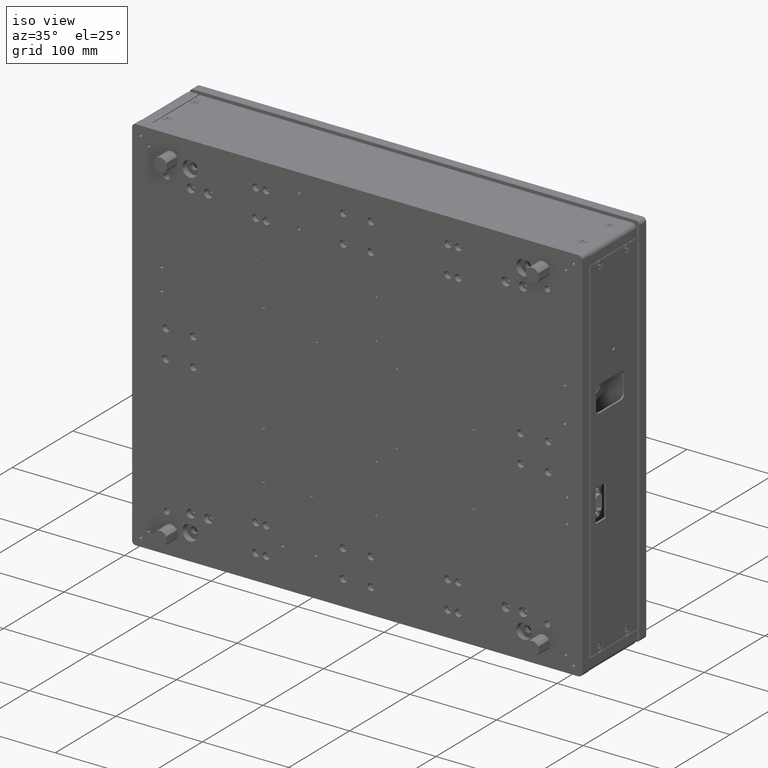
[diagram: clean part render]
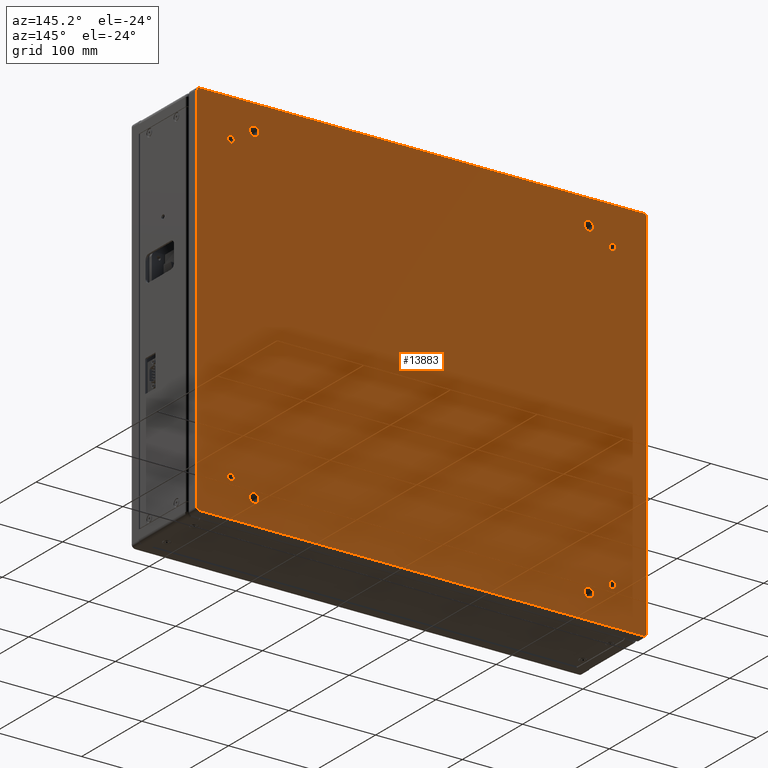
[diagram: tour spotlight — one face highlighted and labeled with its STEP entity id]
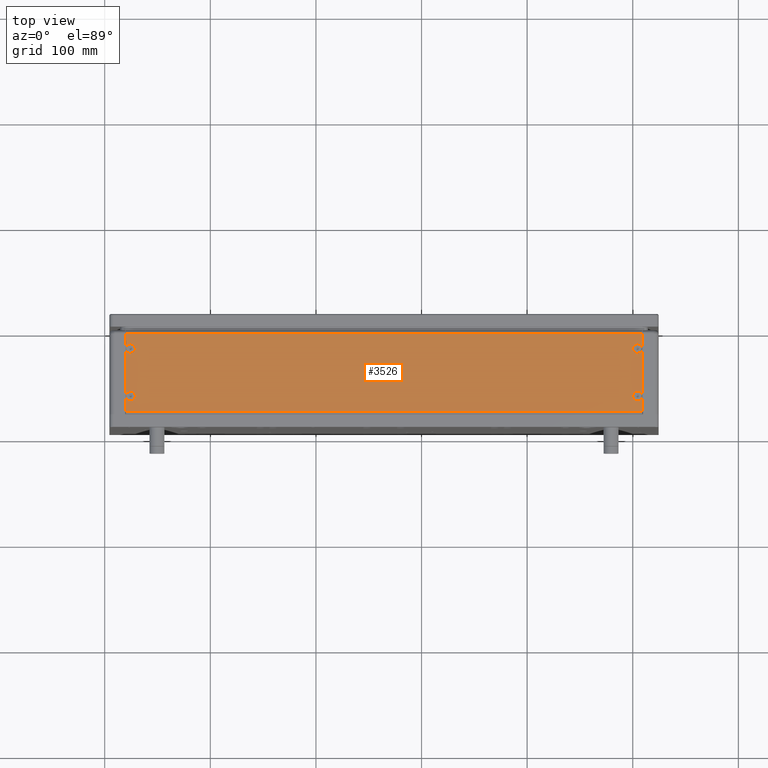
[diagram: tour spotlight — one face highlighted and labeled with its STEP entity id]
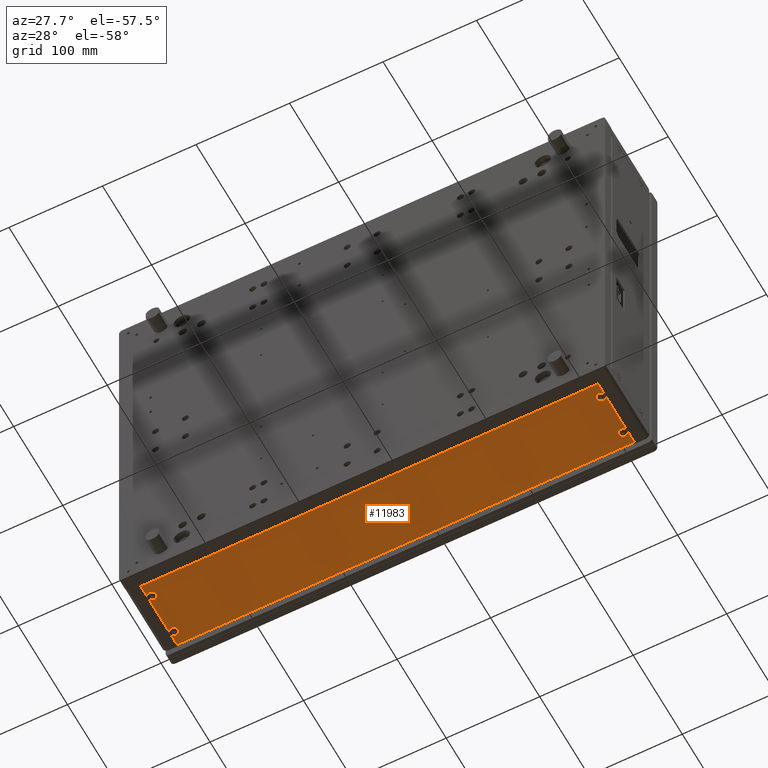
[diagram: tour spotlight — one face highlighted and labeled with its STEP entity id]
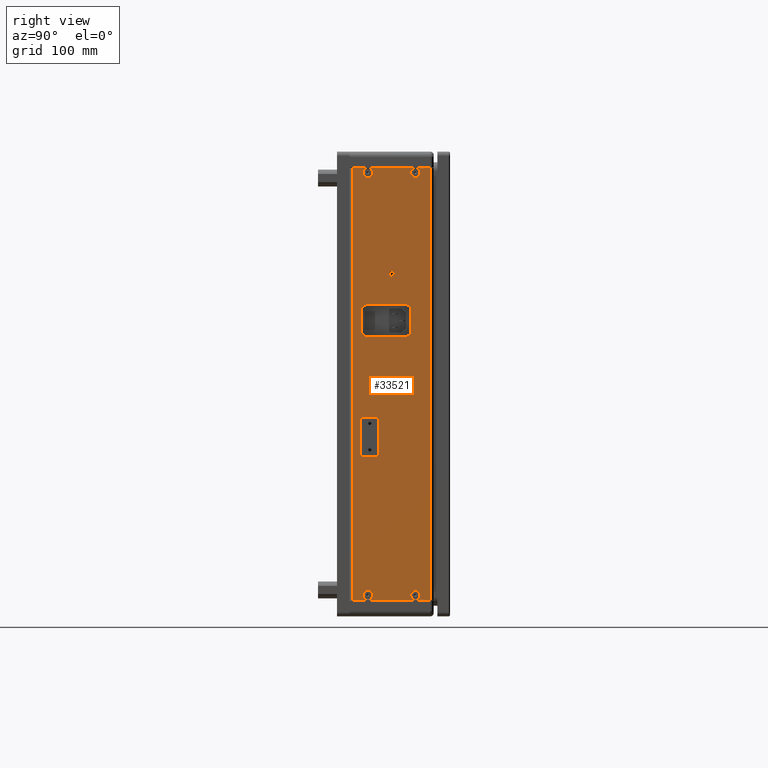
[diagram: tour spotlight — one face highlighted and labeled with its STEP entity id]
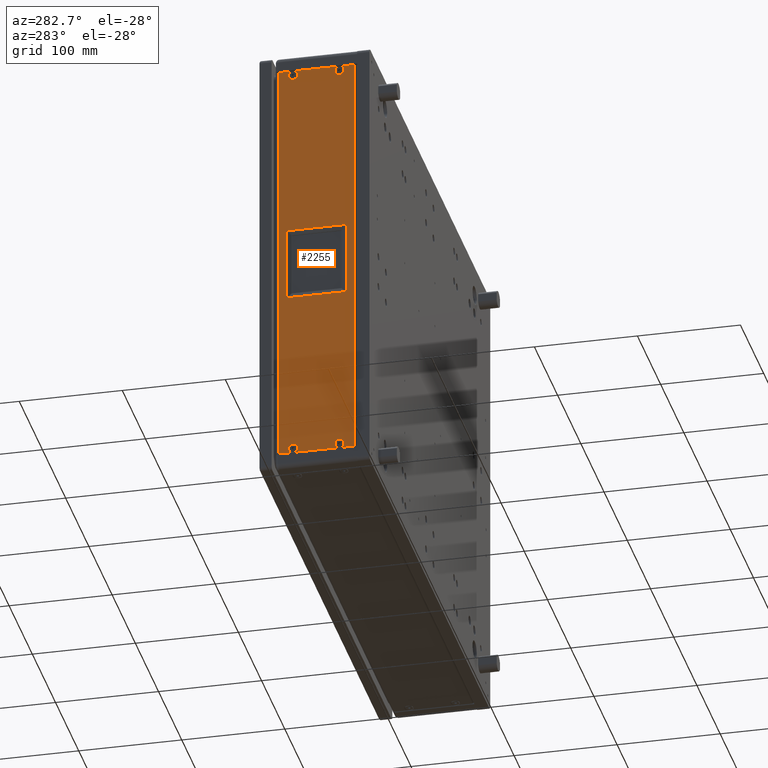
[diagram: tour spotlight — one face highlighted and labeled with its STEP entity id]
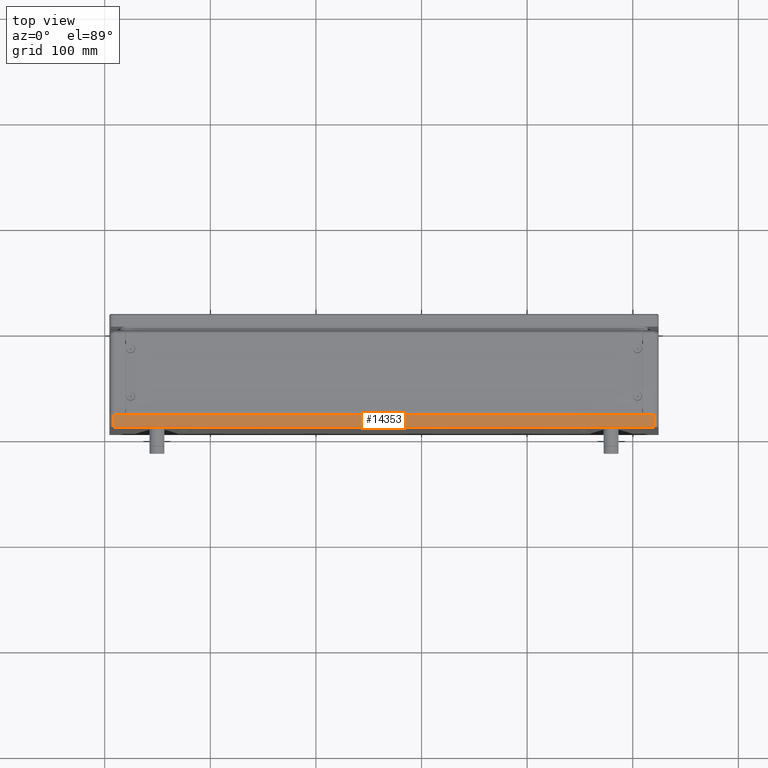
[diagram: tour spotlight — one face highlighted and labeled with its STEP entity id]
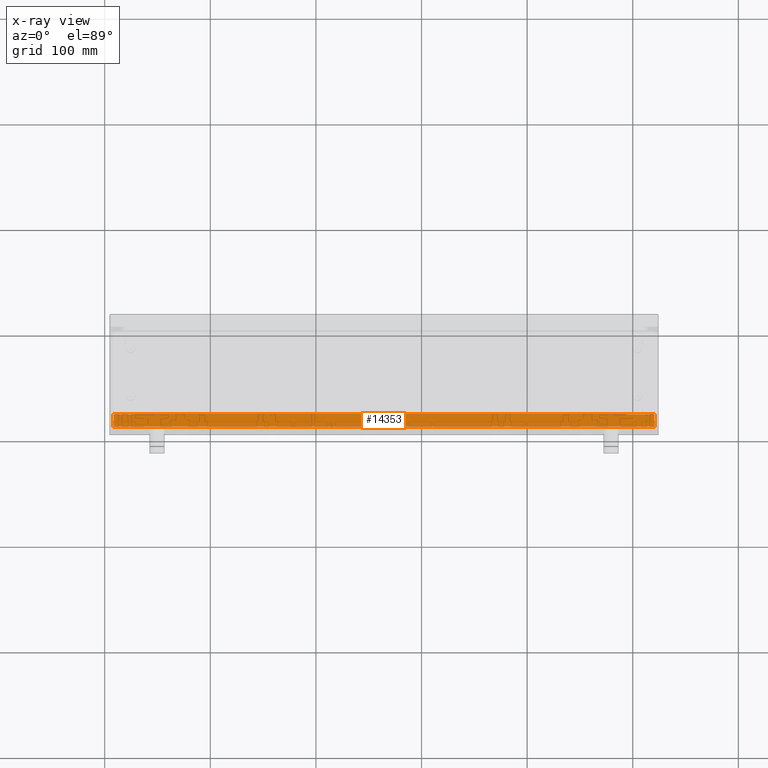
[diagram: x-ray of the same camera — body ghosted, this tour face saturated]
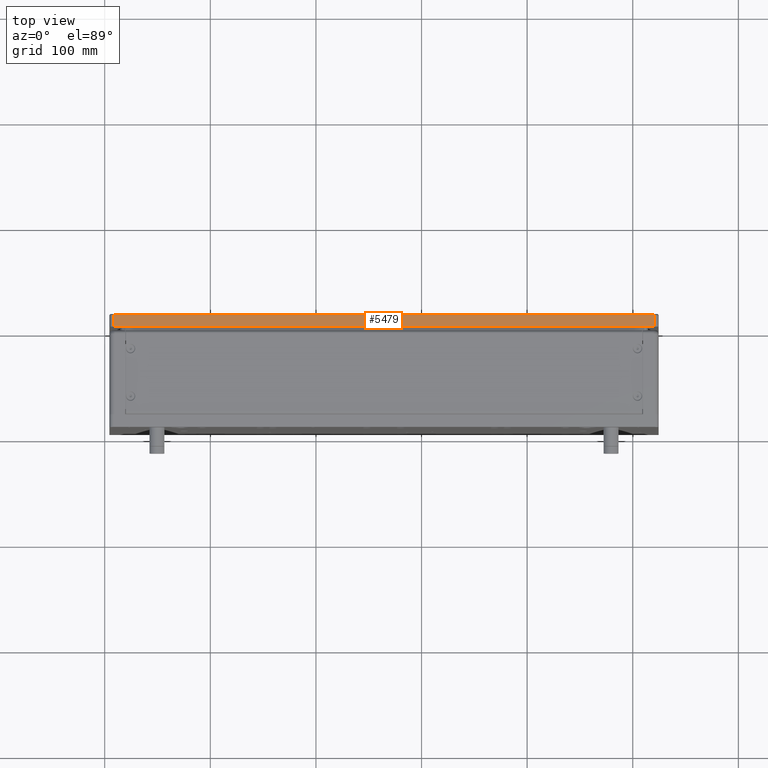
[diagram: tour spotlight — one face highlighted and labeled with its STEP entity id]
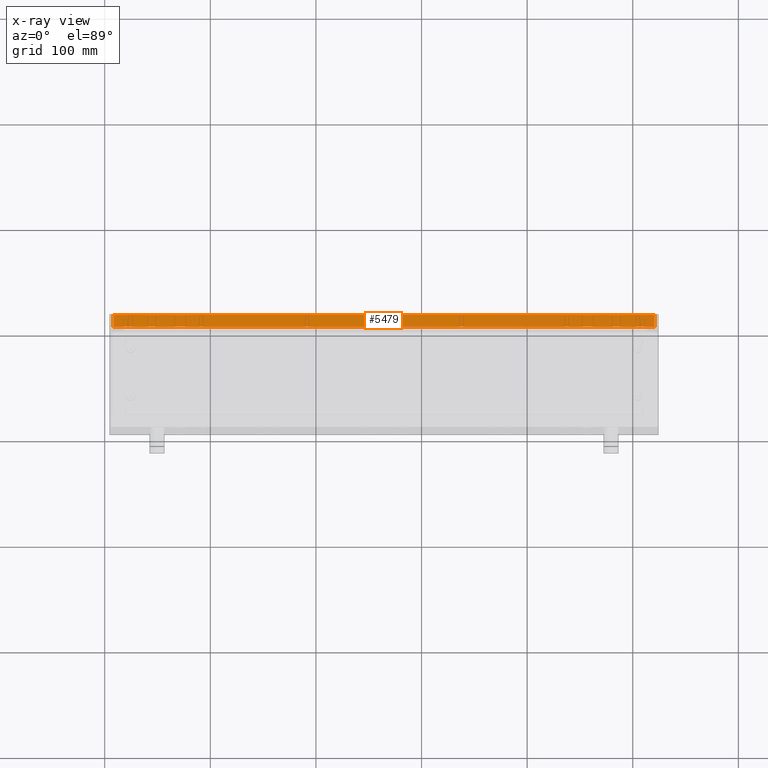
[diagram: x-ray of the same camera — body ghosted, this tour face saturated]
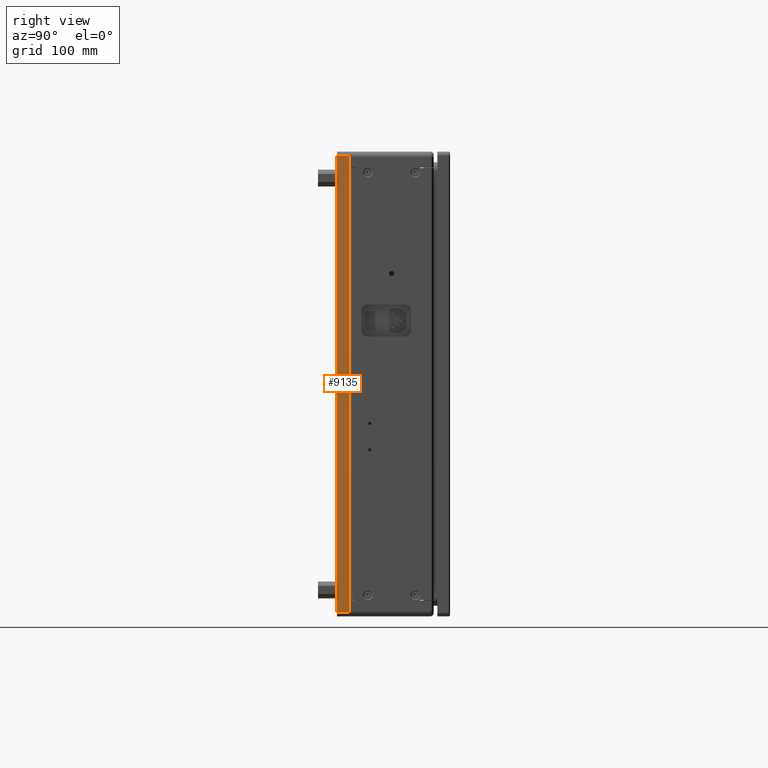
[diagram: tour spotlight — one face highlighted and labeled with its STEP entity id]
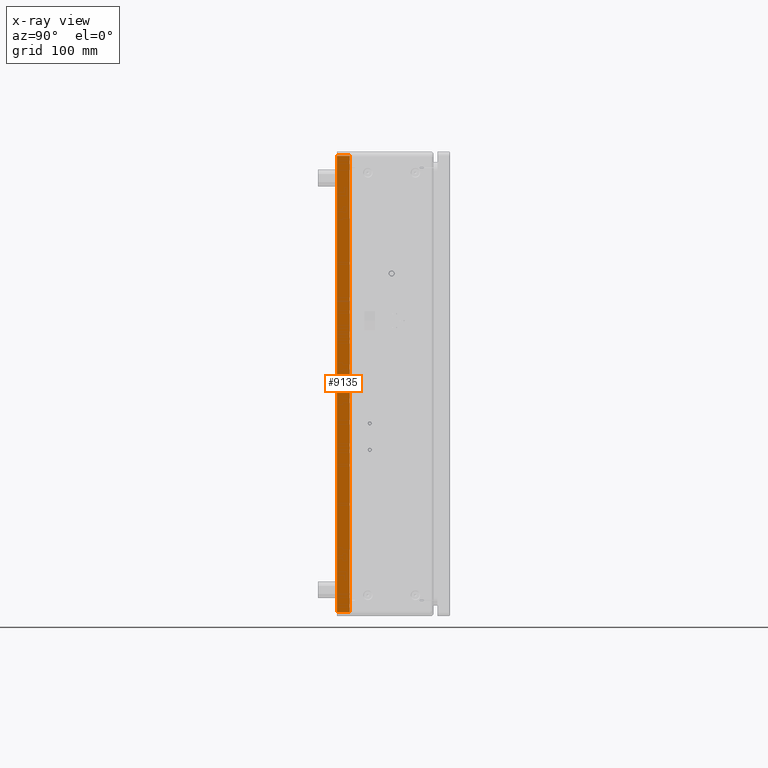
[diagram: x-ray of the same camera — body ghosted, this tour face saturated]
A machine part: a face-by-face anatomy tour. The part has 1409 B-rep faces; the first image is the clean iso view, then the 8 largest visible faces are spotlighted one at a time (largest first), each with its STEP entity span.

Face 1 — auxiliary view, entity #13883. In plain terms, the highlighted planar face has unit normal (0, -1, 0).
Definition (entity closure, byte-faithful):
#72 = EDGE_CURVE ( 'NONE', #1175, #28029, #6540, .T. ) ;
#145 = CARTESIAN_POINT ( 'NONE',  ( 184.4512755979888539, 113.1371811005063961, 335.9999999999999432 ) ) ;
#672 = FACE_BOUND ( 'NONE', #3833, .T. ) ;
#790 = DIRECTION ( 'NONE',  ( 0.000000000000000000, 0.000000000000000000, -1.000000000000000000 ) ) ;
#1175 = VERTEX_POINT ( 'NONE', #4856 ) ;
#1696 = CIRCLE ( 'NONE', #37795, 5.500000000000005329 ) ;
#1729 = CARTESIAN_POINT ( 'NONE',  ( -65.92273067638430462, 113.1371811005063250, 295.9999999999999432 ) ) ;
#2212 = ORIENTED_EDGE ( 'NONE', *, *, #8549, .T. ) ;
#2419 = VERTEX_POINT ( 'NONE', #14514 ) ;
#2427 = CARTESIAN_POINT ( 'NONE',  ( -255.5487244020111461, 113.1371811005062824, 335.9999999999999432 ) ) ;
#3106 = VERTEX_POINT ( 'NONE', #145 ) ;
#3304 = ORIENTED_EDGE ( 'NONE', *, *, #31979, .F. ) ;
#3598 = EDGE_LOOP ( 'NONE', ( #33654 ) ) ;
#3635 = FACE_BOUND ( 'NONE', #37758, .T. ) ;
#3641 = DIRECTION ( 'NONE',  ( 2.376672073132158167E-16, -1.000000000000000000, 8.030019939456232739E-17 ) ) ;
#3833 = EDGE_LOOP ( 'NONE', ( #28920 ) ) ;
#3973 = VERTEX_POINT ( 'NONE', #19656 ) ;
#4132 = DIRECTION ( 'NONE',  ( 0.000000000000000000, 0.000000000000000000, -1.000000000000000000 ) ) ;
#4336 = CARTESIAN_POINT ( 'NONE',  ( -255.5487244020110893, 113.1371811005063108, 690.0000000000000000 ) ) ;
#4638 = VERTEX_POINT ( 'NONE', #28811 ) ;
#4856 = CARTESIAN_POINT ( 'NONE',  ( 223.4512755979983183, 113.1371811004970880, 298.9999999999999432 ) ) ;
#4919 = CARTESIAN_POINT ( 'NONE',  ( 184.4512755979888539, 113.1371811005063961, 339.9999999999999432 ) ) ;
#5038 = EDGE_CURVE ( 'NONE', #21631, #21631, #38000, .T. ) ;
#5586 = AXIS2_PLACEMENT_3D ( 'NONE', #9426, #34196, #15174 ) ;
#6056 = VERTEX_POINT ( 'NONE', #16758 ) ;
#6540 = LINE ( 'NONE', #15446, #26435 ) ;
#6632 = DIRECTION ( 'NONE',  ( 0.000000000000000000, 0.000000000000000000, -1.000000000000000000 ) ) ;
#6817 = DIRECTION ( 'NONE',  ( 2.376672073132158167E-16, -1.000000000000000000, 8.030019939456232739E-17 ) ) ;
#7319 = CARTESIAN_POINT ( 'NONE',  ( -291.5487244020110893, 113.1371811004876378, 298.9999999999999432 ) ) ;
#7488 = LINE ( 'NONE', #1729, #35910 ) ;
#7697 = DIRECTION ( 'NONE',  ( -1.066854937725736117E-16, -8.030019939456235204E-17, -1.000000000000000000 ) ) ;
#7935 = ORIENTED_EDGE ( 'NONE', *, *, #72, .F. ) ;
#8092 = LINE ( 'NONE', #8290, #11052 ) ;
#8290 = CARTESIAN_POINT ( 'NONE',  ( -294.5487244020110893, 113.1371811005062966, 493.3565087996969396 ) ) ;
#8380 = DIRECTION ( 'NONE',  ( -1.000000000000000000, -2.376672073132158167E-16, 1.066854937725736363E-16 ) ) ;
#8393 = AXIS2_PLACEMENT_3D ( 'NONE', #30051, #23335, #27083 ) ;
#8549 = EDGE_CURVE ( 'NONE', #27726, #27726, #21869, .T. ) ;
#9134 = DIRECTION ( 'NONE',  ( 0.000000000000000000, 0.000000000000000000, 1.000000000000000000 ) ) ;
#9414 = CARTESIAN_POINT ( 'NONE',  ( 220.4512755979889391, 113.1371811004877941, 731.0000000000000000 ) ) ;
#9426 = CARTESIAN_POINT ( 'NONE',  ( -291.5487244020110893, 113.1371811004876804, 731.0000000000000000 ) ) ;
#9678 = CARTESIAN_POINT ( 'NONE',  ( 157.4512755979891665, 113.1371811005064245, 710.4999999999998863 ) ) ;
#9730 = VERTEX_POINT ( 'NONE', #32603 ) ;
#9773 = VERTEX_POINT ( 'NONE', #16093 ) ;
#10182 = FACE_BOUND ( 'NONE', #28056, .T. ) ;
#10331 = EDGE_CURVE ( 'NONE', #4638, #6056, #11721, .T. ) ;
#10636 = CIRCLE ( 'NONE', #5586, 3.000000000057956306 ) ;
#11052 = VECTOR ( 'NONE', #7697, 1000.000000000000000 ) ;
#11183 = CARTESIAN_POINT ( 'NONE',  ( 157.4512755979891665, 113.1371811005064245, 704.9999999999998863 ) ) ;
#11590 = VECTOR ( 'NONE', #8380, 1000.000000000000000 ) ;
#11721 = LINE ( 'NONE', #35737, #11590 ) ;
#11910 = AXIS2_PLACEMENT_3D ( 'NONE', #9414, #3641, #6632 ) ;
#11940 = CARTESIAN_POINT ( 'NONE',  ( 223.4512755979779399, 113.1371811005208770, 731.0000000000000000 ) ) ;
#11979 = DIRECTION ( 'NONE',  ( 0.000000000000000000, 0.000000000000000000, 1.000000000000000000 ) ) ;
#12432 = EDGE_CURVE ( 'NONE', #9773, #9773, #36305, .T. ) ;
#12663 = AXIS2_PLACEMENT_3D ( 'NONE', #4336, #16418, #28524 ) ;
#12669 = DIRECTION ( 'NONE',  ( 2.376672073132158167E-16, -1.000000000000000000, 8.030019939456232739E-17 ) ) ;
#12889 = CARTESIAN_POINT ( 'NONE',  ( 184.4512755979888539, 113.1371811005064245, 690.0000000000000000 ) ) ;
#12943 = FACE_BOUND ( 'NONE', #23721, .T. ) ;
#13374 = CARTESIAN_POINT ( 'NONE',  ( -228.5487244020109188, 113.1371811005063250, 705.0000000000000000 ) ) ;
#13528 = CIRCLE ( 'NONE', #8393, 3.000000000074276585 ) ;
#13780 = DIRECTION ( 'NONE',  ( 0.000000000000000000, 0.000000000000000000, 1.000000000000000000 ) ) ;
#13883 = ADVANCED_FACE ( 'NONE', ( #16305, #28615, #3635, #19501, #12943, #25052, #10182, #22078, #672 ), #22277, .F. ) ;
#14183 = CARTESIAN_POINT ( 'NONE',  ( 157.4512755979890528, 113.1371811005063819, 324.9999999999998295 ) ) ;
#14514 = CARTESIAN_POINT ( 'NONE',  ( -228.5487244020110040, 113.1371811005062966, 330.4999999999999432 ) ) ;
#14737 = CIRCLE ( 'NONE', #19830, 5.500000000000060396 ) ;
#14877 = DIRECTION ( 'NONE',  ( 2.376672073132158167E-16, -1.000000000000000000, 8.030019939456232739E-17 ) ) ;
#15174 = DIRECTION ( 'NONE',  ( 0.000000000000000000, 0.000000000000000000, -1.000000000000000000 ) ) ;
#15438 = VERTEX_POINT ( 'NONE', #36921 ) ;
#15446 = CARTESIAN_POINT ( 'NONE',  ( 223.4512755979889960, 113.1371811005064103, 493.3565087996968828 ) ) ;
#15753 = EDGE_CURVE ( 'NONE', #2419, #2419, #1696, .T. ) ;
#16093 = CARTESIAN_POINT ( 'NONE',  ( 157.4512755979890528, 113.1371811005063819, 330.4999999999998295 ) ) ;
#16305 = FACE_OUTER_BOUND ( 'NONE', #36260, .T. ) ;
#16367 = CARTESIAN_POINT ( 'NONE',  ( -294.5487244020223443, 113.1371811005207206, 298.9999999999999432 ) ) ;
#16418 = DIRECTION ( 'NONE',  ( 2.376672073132158167E-16, -1.000000000000000000, 8.030019939456232739E-17 ) ) ;
#16708 = EDGE_CURVE ( 'NONE', #6056, #9730, #10636, .T. ) ;
#16758 = CARTESIAN_POINT ( 'NONE',  ( -291.5487244020110325, 113.1371811005207491, 734.0000000000140972 ) ) ;
#16947 = ORIENTED_EDGE ( 'NONE', *, *, #16708, .F. ) ;
#17374 = DIRECTION ( 'NONE',  ( 2.376672073132158167E-16, -1.000000000000000000, 8.030019939456232739E-17 ) ) ;
#17569 = ORIENTED_EDGE ( 'NONE', *, *, #31992, .T. ) ;
#17750 = EDGE_CURVE ( 'NONE', #9730, #28695, #8092, .T. ) ;
#17922 = DIRECTION ( 'NONE',  ( 2.376672073132158167E-16, -1.000000000000000000, 8.030019939456232739E-17 ) ) ;
#18508 = AXIS2_PLACEMENT_3D ( 'NONE', #4919, #17374, #790 ) ;
#19174 = VERTEX_POINT ( 'NONE', #33948 ) ;
#19492 = AXIS2_PLACEMENT_3D ( 'NONE', #23318, #38204, #35606 ) ;
#19501 = FACE_BOUND ( 'NONE', #24390, .T. ) ;
#19656 = CARTESIAN_POINT ( 'NONE',  ( -255.5487244020110893, 113.1371811005063108, 686.0000000000000000 ) ) ;
#19830 = AXIS2_PLACEMENT_3D ( 'NONE', #13374, #29583, #13780 ) ;
#20087 = ORIENTED_EDGE ( 'NONE', *, *, #12432, .T. ) ;
#20143 = EDGE_CURVE ( 'NONE', #19174, #15438, #7488, .T. ) ;
#20282 = EDGE_CURVE ( 'NONE', #15438, #1175, #13528, .T. ) ;
#20573 = EDGE_CURVE ( 'NONE', #37046, #37046, #14737, .T. ) ;
#20591 = ORIENTED_EDGE ( 'NONE', *, *, #10331, .F. ) ;
#20877 = VERTEX_POINT ( 'NONE', #2427 ) ;
#21029 = DIRECTION ( 'NONE',  ( 1.066854937725736117E-16, 8.030019939456235204E-17, 1.000000000000000000 ) ) ;
#21055 = CIRCLE ( 'NONE', #18508, 4.000000000000003553 ) ;
#21631 = VERTEX_POINT ( 'NONE', #33718 ) ;
#21817 = ORIENTED_EDGE ( 'NONE', *, *, #38575, .T. ) ;
#21869 = CIRCLE ( 'NONE', #26953, 5.500000000000060396 ) ;
#22078 = FACE_BOUND ( 'NONE', #3598, .T. ) ;
#22277 = PLANE ( 'NONE',  #30031 ) ;
#23215 = ORIENTED_EDGE ( 'NONE', *, *, #20282, .F. ) ;
#23318 = CARTESIAN_POINT ( 'NONE',  ( -255.5487244020111461, 113.1371811005062824, 339.9999999999999432 ) ) ;
#23335 = DIRECTION ( 'NONE',  ( 2.376672073132158167E-16, -1.000000000000000000, 8.030019939456232739E-17 ) ) ;
#23445 = AXIS2_PLACEMENT_3D ( 'NONE', #7319, #12669, #4132 ) ;
#23721 = EDGE_LOOP ( 'NONE', ( #33223 ) ) ;
#23911 = CIRCLE ( 'NONE', #19492, 4.000000000000003553 ) ;
#23997 = ORIENTED_EDGE ( 'NONE', *, *, #33005, .F. ) ;
#24186 = EDGE_LOOP ( 'NONE', ( #21817 ) ) ;
#24390 = EDGE_LOOP ( 'NONE', ( #27741 ) ) ;
#25052 = FACE_BOUND ( 'NONE', #37436, .T. ) ;
#25591 = DIRECTION ( 'NONE',  ( 2.376672073132158167E-16, -1.000000000000000000, 8.030019939456232739E-17 ) ) ;
#25960 = AXIS2_PLACEMENT_3D ( 'NONE', #12889, #25591, #37495 ) ;
#26435 = VECTOR ( 'NONE', #21029, 1000.000000000000000 ) ;
#26953 = AXIS2_PLACEMENT_3D ( 'NONE', #11183, #35192, #32412 ) ;
#27083 = DIRECTION ( 'NONE',  ( 0.000000000000000000, 0.000000000000000000, -1.000000000000000000 ) ) ;
#27726 = VERTEX_POINT ( 'NONE', #9678 ) ;
#27741 = ORIENTED_EDGE ( 'NONE', *, *, #5038, .T. ) ;
#27869 = CIRCLE ( 'NONE', #12663, 4.000000000000003553 ) ;
#28029 = VERTEX_POINT ( 'NONE', #11940 ) ;
#28056 = EDGE_LOOP ( 'NONE', ( #20087 ) ) ;
#28413 = CARTESIAN_POINT ( 'NONE',  ( -65.92273067638427619, 113.1371811005063535, 493.3565087996969396 ) ) ;
#28524 = DIRECTION ( 'NONE',  ( 0.000000000000000000, 0.000000000000000000, -1.000000000000000000 ) ) ;
#28615 = FACE_BOUND ( 'NONE', #24186, .T. ) ;
#28689 = DIRECTION ( 'NONE',  ( 1.000000000000000000, 2.376672073132158167E-16, -1.066854937725736363E-16 ) ) ;
#28695 = VERTEX_POINT ( 'NONE', #16367 ) ;
#28811 = CARTESIAN_POINT ( 'NONE',  ( 220.4512755979889391, 113.1371811004971164, 734.0000000000093223 ) ) ;
#28813 = EDGE_CURVE ( 'NONE', #20877, #20877, #23911, .T. ) ;
#28920 = ORIENTED_EDGE ( 'NONE', *, *, #20573, .T. ) ;
#29583 = DIRECTION ( 'NONE',  ( 2.376672073132158167E-16, -1.000000000000000000, 8.030019939456232739E-17 ) ) ;
#29662 = CIRCLE ( 'NONE', #11910, 3.000000000057956306 ) ;
#30031 = AXIS2_PLACEMENT_3D ( 'NONE', #28413, #6817, #34366 ) ;
#30051 = CARTESIAN_POINT ( 'NONE',  ( 220.4512755979889960, 113.1371811004877657, 298.9999999999999432 ) ) ;
#30315 = CARTESIAN_POINT ( 'NONE',  ( -228.5487244020109188, 113.1371811005063250, 710.5000000000000000 ) ) ;
#31979 = EDGE_CURVE ( 'NONE', #28695, #19174, #36737, .T. ) ;
#31992 = EDGE_CURVE ( 'NONE', #3973, #3973, #27869, .T. ) ;
#32412 = DIRECTION ( 'NONE',  ( 0.000000000000000000, 0.000000000000000000, 1.000000000000000000 ) ) ;
#32603 = CARTESIAN_POINT ( 'NONE',  ( -294.5487244020204116, 113.1371811004969885, 731.0000000000000000 ) ) ;
#32745 = ORIENTED_EDGE ( 'NONE', *, *, #17750, .F. ) ;
#33005 = EDGE_CURVE ( 'NONE', #28029, #4638, #29662, .T. ) ;
#33223 = ORIENTED_EDGE ( 'NONE', *, *, #28813, .T. ) ;
#33654 = ORIENTED_EDGE ( 'NONE', *, *, #15753, .T. ) ;
#33718 = CARTESIAN_POINT ( 'NONE',  ( 184.4512755979888539, 113.1371811005064245, 686.0000000000000000 ) ) ;
#33948 = CARTESIAN_POINT ( 'NONE',  ( -291.5487244020110893, 113.1371811005207206, 295.9999999999884608 ) ) ;
#34196 = DIRECTION ( 'NONE',  ( 2.376672073132158167E-16, -1.000000000000000000, 8.030019939456232739E-17 ) ) ;
#34366 = DIRECTION ( 'NONE',  ( -1.066854937725736117E-16, -8.030019939456235204E-17, -1.000000000000000000 ) ) ;
#35192 = DIRECTION ( 'NONE',  ( 2.376672073132158167E-16, -1.000000000000000000, 8.030019939456232739E-17 ) ) ;
#35606 = DIRECTION ( 'NONE',  ( 0.000000000000000000, 0.000000000000000000, -1.000000000000000000 ) ) ;
#35737 = CARTESIAN_POINT ( 'NONE',  ( -65.92273067638424777, 113.1371811005063677, 734.0000000000000000 ) ) ;
#35910 = VECTOR ( 'NONE', #28689, 1000.000000000000000 ) ;
#36260 = EDGE_LOOP ( 'NONE', ( #20591, #23997, #7935, #23215, #38450, #3304, #32745, #16947 ) ) ;
#36301 = CARTESIAN_POINT ( 'NONE',  ( -228.5487244020110040, 113.1371811005062966, 324.9999999999999432 ) ) ;
#36305 = CIRCLE ( 'NONE', #37576, 5.500000000000005329 ) ;
#36737 = CIRCLE ( 'NONE', #23445, 3.000000000074276585 ) ;
#36921 = CARTESIAN_POINT ( 'NONE',  ( 220.4512755979889960, 113.1371811005208485, 295.9999999999884039 ) ) ;
#37046 = VERTEX_POINT ( 'NONE', #30315 ) ;
#37436 = EDGE_LOOP ( 'NONE', ( #2212 ) ) ;
#37495 = DIRECTION ( 'NONE',  ( 0.000000000000000000, 0.000000000000000000, -1.000000000000000000 ) ) ;
#37576 = AXIS2_PLACEMENT_3D ( 'NONE', #14183, #17922, #11979 ) ;
#37758 = EDGE_LOOP ( 'NONE', ( #17569 ) ) ;
#37795 = AXIS2_PLACEMENT_3D ( 'NONE', #36301, #14877, #9134 ) ;
#38000 = CIRCLE ( 'NONE', #25960, 4.000000000000003553 ) ;
#38204 = DIRECTION ( 'NONE',  ( 2.376672073132158167E-16, -1.000000000000000000, 8.030019939456232739E-17 ) ) ;
#38450 = ORIENTED_EDGE ( 'NONE', *, *, #20143, .F. ) ;
#38575 = EDGE_CURVE ( 'NONE', #3106, #3106, #21055, .T. ) ;

Face 2 — top view, entity #3526. In plain terms, the highlighted planar face has unit normal (-0, 0, 1).
Definition (entity closure, byte-faithful):
#298 = DIRECTION ( 'NONE',  ( 1.000000000000000000, 0.000000000000000000, 0.000000000000000000 ) ) ;
#678 = EDGE_CURVE ( 'NONE', #33120, #14634, #21742, .T. ) ;
#868 = DIRECTION ( 'NONE',  ( -0.000000000000000000, -1.000000000000000000, -0.000000000000000000 ) ) ;
#3526 = ADVANCED_FACE ( 'NONE', ( #4004, #13331, #30988, #25429, #34157 ), #13122, .T. ) ;
#3661 = DIRECTION ( 'NONE',  ( -0.000000000000000000, 0.000000000000000000, -1.000000000000000000 ) ) ;
#4004 = FACE_OUTER_BOUND ( 'NONE', #24113, .T. ) ;
#4036 = CARTESIAN_POINT ( 'NONE',  ( 208.9512755979877738, 97.63718110050980670, 734.4999999999993179 ) ) ;
#5407 = ORIENTED_EDGE ( 'NONE', *, *, #678, .T. ) ;
#6608 = DIRECTION ( 'NONE',  ( 1.000000000000000000, 0.000000000000000000, 0.000000000000000000 ) ) ;
#7000 = CARTESIAN_POINT ( 'NONE',  ( -280.0487244020122262, 97.63718110050980670, 734.4999999999993179 ) ) ;
#7398 = DIRECTION ( 'NONE',  ( -0.000000000000000000, 0.000000000000000000, 1.000000000000000000 ) ) ;
#8085 = EDGE_LOOP ( 'NONE', ( #16890 ) ) ;
#8466 = VECTOR ( 'NONE', #12682, 1000.000000000000000 ) ;
#8478 = VERTEX_POINT ( 'NONE', #20571 ) ;
#9187 = CIRCLE ( 'NONE', #33864, 4.480000000026407747 ) ;
#9669 = CARTESIAN_POINT ( 'NONE',  ( 208.9512755979877738, 94.90058110050982521, 734.4999999999993179 ) ) ;
#9779 = VECTOR ( 'NONE', #15780, 1000.000000000000000 ) ;
#11173 = CARTESIAN_POINT ( 'NONE',  ( -280.0487244020122262, 20.87378110050981661, 734.4999999999993179 ) ) ;
#11457 = ORIENTED_EDGE ( 'NONE', *, *, #11988, .T. ) ;
#11988 = EDGE_CURVE ( 'NONE', #8478, #8478, #29274, .T. ) ;
#12480 = ORIENTED_EDGE ( 'NONE', *, *, #24705, .T. ) ;
#12682 = DIRECTION ( 'NONE',  ( -1.224646799147353454E-16, 1.000000000000000000, -0.000000000000000000 ) ) ;
#13122 = PLANE ( 'NONE',  #39156 ) ;
#13290 = CARTESIAN_POINT ( 'NONE',  ( -271.0687244020040225, 35.38718110050982801, 734.4999999999993179 ) ) ;
#13331 = FACE_BOUND ( 'NONE', #28282, .T. ) ;
#13956 = CARTESIAN_POINT ( 'NONE',  ( -280.0487244020122262, 94.90058110050982521, 734.4999999999993179 ) ) ;
#14220 = ORIENTED_EDGE ( 'NONE', *, *, #18023, .T. ) ;
#14615 = CARTESIAN_POINT ( 'NONE',  ( -275.5487244020122262, 80.38718110050982091, 734.4999999999424745 ) ) ;
#14634 = VERTEX_POINT ( 'NONE', #15450 ) ;
#15450 = CARTESIAN_POINT ( 'NONE',  ( 208.9512755979877738, 20.87378110050981661, 734.4999999999993179 ) ) ;
#15780 = DIRECTION ( 'NONE',  ( 1.000000000000000000, 0.000000000000000000, 0.000000000000000000 ) ) ;
#16682 = EDGE_LOOP ( 'NONE', ( #14220 ) ) ;
#16890 = ORIENTED_EDGE ( 'NONE', *, *, #34080, .T. ) ;
#17117 = LINE ( 'NONE', #13956, #38597 ) ;
#17395 = DIRECTION ( 'NONE',  ( -0.000000000000000000, 0.000000000000000000, -1.000000000000000000 ) ) ;
#17690 = CARTESIAN_POINT ( 'NONE',  ( 204.4512755979877454, 35.38718110050997012, 734.5000000000561613 ) ) ;
#18023 = EDGE_CURVE ( 'NONE', #38096, #38096, #19294, .T. ) ;
#18050 = LINE ( 'NONE', #24206, #8466 ) ;
#18168 = DIRECTION ( 'NONE',  ( 1.000000000000000000, 0.000000000000000000, 0.000000000000000000 ) ) ;
#18565 = EDGE_CURVE ( 'NONE', #37031, #14634, #19516, .T. ) ;
#18617 = CARTESIAN_POINT ( 'NONE',  ( 208.9312755980141674, 80.38718110050996302, 734.5000000000561613 ) ) ;
#18740 = CARTESIAN_POINT ( 'NONE',  ( -275.5487244020121693, 35.38718110050982801, 734.4999999999993179 ) ) ;
#19294 = CIRCLE ( 'NONE', #26898, 4.480000000008144134 ) ;
#19348 = ORIENTED_EDGE ( 'NONE', *, *, #26127, .T. ) ;
#19516 = LINE ( 'NONE', #4036, #25650 ) ;
#19832 = ORIENTED_EDGE ( 'NONE', *, *, #35671, .F. ) ;
#20484 = DIRECTION ( 'NONE',  ( 1.000000000000000000, 0.000000000000000000, 0.000000000000000000 ) ) ;
#20571 = CARTESIAN_POINT ( 'NONE',  ( -271.0687244020040225, 80.38718110050982091, 734.4999999999424745 ) ) ;
#21060 = AXIS2_PLACEMENT_3D ( 'NONE', #14615, #17395, #18168 ) ;
#21686 = CARTESIAN_POINT ( 'NONE',  ( -280.0487244020122262, 94.90058110050982521, 734.4999999999993179 ) ) ;
#21742 = LINE ( 'NONE', #33838, #9779 ) ;
#21976 = CIRCLE ( 'NONE', #32142, 4.480000000026407747 ) ;
#24113 = EDGE_LOOP ( 'NONE', ( #38213, #19348, #19832, #5407 ) ) ;
#24206 = CARTESIAN_POINT ( 'NONE',  ( -280.0487244020122262, 97.63718110050980670, 734.4999999999993179 ) ) ;
#24485 = CARTESIAN_POINT ( 'NONE',  ( 204.4512755979877454, 80.38718110050996302, 734.5000000000561613 ) ) ;
#24705 = EDGE_CURVE ( 'NONE', #30261, #30261, #21976, .T. ) ;
#25429 = FACE_BOUND ( 'NONE', #16682, .T. ) ;
#25650 = VECTOR ( 'NONE', #868, 1000.000000000000000 ) ;
#26098 = EDGE_LOOP ( 'NONE', ( #11457 ) ) ;
#26127 = EDGE_CURVE ( 'NONE', #37031, #29012, #17117, .T. ) ;
#26898 = AXIS2_PLACEMENT_3D ( 'NONE', #18740, #3661, #27864 ) ;
#27864 = DIRECTION ( 'NONE',  ( 1.000000000000000000, 0.000000000000000000, 0.000000000000000000 ) ) ;
#28282 = EDGE_LOOP ( 'NONE', ( #12480 ) ) ;
#29012 = VERTEX_POINT ( 'NONE', #21686 ) ;
#29226 = DIRECTION ( 'NONE',  ( -1.000000000000000000, -0.000000000000000000, -0.000000000000000000 ) ) ;
#29274 = CIRCLE ( 'NONE', #21060, 4.480000000008200089 ) ;
#30042 = DIRECTION ( 'NONE',  ( -0.000000000000000000, 0.000000000000000000, -1.000000000000000000 ) ) ;
#30261 = VERTEX_POINT ( 'NONE', #33438 ) ;
#30988 = FACE_BOUND ( 'NONE', #8085, .T. ) ;
#32142 = AXIS2_PLACEMENT_3D ( 'NONE', #17690, #32388, #20484 ) ;
#32388 = DIRECTION ( 'NONE',  ( -0.000000000000000000, 0.000000000000000000, -1.000000000000000000 ) ) ;
#33120 = VERTEX_POINT ( 'NONE', #11173 ) ;
#33438 = CARTESIAN_POINT ( 'NONE',  ( 208.9312755980141674, 35.38718110050997012, 734.5000000000561613 ) ) ;
#33838 = CARTESIAN_POINT ( 'NONE',  ( -280.0487244020122262, 20.87378110050981661, 734.4999999999993179 ) ) ;
#33864 = AXIS2_PLACEMENT_3D ( 'NONE', #24485, #30042, #298 ) ;
#34080 = EDGE_CURVE ( 'NONE', #36094, #36094, #9187, .T. ) ;
#34157 = FACE_BOUND ( 'NONE', #26098, .T. ) ;
#35671 = EDGE_CURVE ( 'NONE', #33120, #29012, #18050, .T. ) ;
#36094 = VERTEX_POINT ( 'NONE', #18617 ) ;
#37031 = VERTEX_POINT ( 'NONE', #9669 ) ;
#38096 = VERTEX_POINT ( 'NONE', #13290 ) ;
#38213 = ORIENTED_EDGE ( 'NONE', *, *, #18565, .F. ) ;
#38597 = VECTOR ( 'NONE', #29226, 1000.000000000000000 ) ;
#39156 = AXIS2_PLACEMENT_3D ( 'NONE', #7000, #7398, #6608 ) ;

Face 3 — auxiliary view, entity #11983. In plain terms, the highlighted planar face has unit normal (-0, -0, -1).
Definition (entity closure, byte-faithful):
#886 = ORIENTED_EDGE ( 'NONE', *, *, #15758, .T. ) ;
#1247 = DIRECTION ( 'NONE',  ( -1.000000000000000000, 0.000000000000000000, 0.000000000000000000 ) ) ;
#2136 = FACE_BOUND ( 'NONE', #21754, .T. ) ;
#2230 = EDGE_CURVE ( 'NONE', #11388, #30097, #15544, .T. ) ;
#2296 = EDGE_LOOP ( 'NONE', ( #18743, #19878, #30809, #21249 ) ) ;
#2401 = DIRECTION ( 'NONE',  ( -1.000000000000000000, 0.000000000000000000, 0.000000000000000000 ) ) ;
#2523 = DIRECTION ( 'NONE',  ( -3.330669073875469128E-16, -1.502257131473532960E-16, -1.000000000000000000 ) ) ;
#3695 = CIRCLE ( 'NONE', #27772, 4.480000000026407747 ) ;
#4050 = CIRCLE ( 'NONE', #8499, 4.480000000008171668 ) ;
#4885 = AXIS2_PLACEMENT_3D ( 'NONE', #14686, #35920, #2401 ) ;
#5325 = PLANE ( 'NONE',  #27364 ) ;
#5518 = FACE_BOUND ( 'NONE', #33478, .T. ) ;
#5778 = DIRECTION ( 'NONE',  ( 9.979187456845916193E-17, -1.000000000000000000, 1.502257131473532714E-16 ) ) ;
#7548 = EDGE_LOOP ( 'NONE', ( #29612 ) ) ;
#8056 = DIRECTION ( 'NONE',  ( -1.000000000000000000, -9.979187456845911262E-17, 3.330669073875469128E-16 ) ) ;
#8252 = DIRECTION ( 'NONE',  ( 3.330669073875469128E-16, 1.502257131473532960E-16, 1.000000000000000000 ) ) ;
#8499 = AXIS2_PLACEMENT_3D ( 'NONE', #35412, #8252, #16551 ) ;
#10007 = EDGE_CURVE ( 'NONE', #28706, #28706, #12171, .T. ) ;
#10084 = VERTEX_POINT ( 'NONE', #34275 ) ;
#10389 = DIRECTION ( 'NONE',  ( 1.000000000000000000, 9.979187456845911262E-17, -3.330669073875469128E-16 ) ) ;
#11129 = EDGE_CURVE ( 'NONE', #38803, #38803, #4050, .T. ) ;
#11257 = DIRECTION ( 'NONE',  ( -1.000000000000000000, -9.979187456845911262E-17, 3.330669073875469128E-16 ) ) ;
#11269 = CARTESIAN_POINT ( 'NONE',  ( 208.9512755979890244, 97.63718110050503185, 295.5000000000001705 ) ) ;
#11388 = VERTEX_POINT ( 'NONE', #19849 ) ;
#11538 = CARTESIAN_POINT ( 'NONE',  ( -280.0287244020373691, 80.38718110050514554, 295.5000000000003411 ) ) ;
#11637 = FACE_OUTER_BOUND ( 'NONE', #2296, .T. ) ;
#11983 = ADVANCED_FACE ( 'NONE', ( #11637, #2136, #5518, #14234, #26335 ), #5325, .T. ) ;
#12171 = CIRCLE ( 'NONE', #23606, 4.480000000008200089 ) ;
#12412 = EDGE_CURVE ( 'NONE', #31647, #28134, #22926, .T. ) ;
#12733 = DIRECTION ( 'NONE',  ( 3.330669073875469128E-16, 1.502257131473532960E-16, 1.000000000000000000 ) ) ;
#13503 = CARTESIAN_POINT ( 'NONE',  ( 208.9512755979890244, 20.87378110050504176, 295.5000000000001705 ) ) ;
#14234 = FACE_BOUND ( 'NONE', #16877, .T. ) ;
#14686 = CARTESIAN_POINT ( 'NONE',  ( -275.5487244020109756, 80.38718110050514554, 295.5000000000003411 ) ) ;
#15544 = LINE ( 'NONE', #33793, #26467 ) ;
#15758 = EDGE_CURVE ( 'NONE', #26621, #26621, #23863, .T. ) ;
#15821 = VECTOR ( 'NONE', #38064, 1000.000000000000000 ) ;
#16551 = DIRECTION ( 'NONE',  ( -1.000000000000000000, 0.000000000000000000, 0.000000000000000000 ) ) ;
#16804 = CARTESIAN_POINT ( 'NONE',  ( 199.9712755979808207, 80.38718110050504606, 295.5000000000001705 ) ) ;
#16877 = EDGE_LOOP ( 'NONE', ( #21499 ) ) ;
#17593 = CARTESIAN_POINT ( 'NONE',  ( 208.9512755979890244, 97.63718110050503185, 295.5000000000001705 ) ) ;
#18743 = ORIENTED_EDGE ( 'NONE', *, *, #31881, .F. ) ;
#19849 = CARTESIAN_POINT ( 'NONE',  ( -280.0487244020110325, 94.90058110050499351, 295.5000000000003411 ) ) ;
#19878 = ORIENTED_EDGE ( 'NONE', *, *, #2230, .T. ) ;
#20227 = CARTESIAN_POINT ( 'NONE',  ( 208.9512755979890244, 94.90058110050505036, 295.5000000000001705 ) ) ;
#21249 = ORIENTED_EDGE ( 'NONE', *, *, #12412, .T. ) ;
#21499 = ORIENTED_EDGE ( 'NONE', *, *, #11129, .T. ) ;
#21754 = EDGE_LOOP ( 'NONE', ( #32539 ) ) ;
#22372 = VECTOR ( 'NONE', #8056, 1000.000000000000000 ) ;
#22926 = LINE ( 'NONE', #37802, #22372 ) ;
#23414 = VECTOR ( 'NONE', #5778, 1000.000000000000000 ) ;
#23606 = AXIS2_PLACEMENT_3D ( 'NONE', #31368, #27623, #1247 ) ;
#23808 = LINE ( 'NONE', #39072, #23414 ) ;
#23863 = CIRCLE ( 'NONE', #4885, 4.480000000026407747 ) ;
#26335 = FACE_BOUND ( 'NONE', #7548, .T. ) ;
#26467 = VECTOR ( 'NONE', #10389, 1000.000000000000000 ) ;
#26621 = VERTEX_POINT ( 'NONE', #11538 ) ;
#27364 = AXIS2_PLACEMENT_3D ( 'NONE', #17593, #2523, #11257 ) ;
#27623 = DIRECTION ( 'NONE',  ( 3.330669073875469128E-16, 1.502257131473532960E-16, 1.000000000000000000 ) ) ;
#27772 = AXIS2_PLACEMENT_3D ( 'NONE', #30394, #12733, #33378 ) ;
#28134 = VERTEX_POINT ( 'NONE', #36330 ) ;
#28706 = VERTEX_POINT ( 'NONE', #16804 ) ;
#29299 = CARTESIAN_POINT ( 'NONE',  ( 199.9712755979808207, 35.38718110050505317, 295.5000000000001705 ) ) ;
#29612 = ORIENTED_EDGE ( 'NONE', *, *, #10007, .T. ) ;
#30097 = VERTEX_POINT ( 'NONE', #20227 ) ;
#30394 = CARTESIAN_POINT ( 'NONE',  ( -275.5487244020109756, 35.38718110050515264, 295.5000000000003411 ) ) ;
#30809 = ORIENTED_EDGE ( 'NONE', *, *, #32082, .F. ) ;
#31368 = CARTESIAN_POINT ( 'NONE',  ( 204.4512755979889960, 80.38718110050504606, 295.5000000000001705 ) ) ;
#31647 = VERTEX_POINT ( 'NONE', #13503 ) ;
#31881 = EDGE_CURVE ( 'NONE', #11388, #28134, #23808, .T. ) ;
#32082 = EDGE_CURVE ( 'NONE', #31647, #30097, #32304, .T. ) ;
#32304 = LINE ( 'NONE', #11269, #15821 ) ;
#32539 = ORIENTED_EDGE ( 'NONE', *, *, #36404, .T. ) ;
#33378 = DIRECTION ( 'NONE',  ( -1.000000000000000000, 0.000000000000000000, 0.000000000000000000 ) ) ;
#33478 = EDGE_LOOP ( 'NONE', ( #886 ) ) ;
#33793 = CARTESIAN_POINT ( 'NONE',  ( 208.9512755979890244, 94.90058110050505036, 295.5000000000001705 ) ) ;
#34275 = CARTESIAN_POINT ( 'NONE',  ( -280.0287244020373691, 35.38718110050515264, 295.5000000000003411 ) ) ;
#35412 = CARTESIAN_POINT ( 'NONE',  ( 204.4512755979889675, 35.38718110050505317, 295.5000000000001705 ) ) ;
#35920 = DIRECTION ( 'NONE',  ( 3.330669073875469128E-16, 1.502257131473532960E-16, 1.000000000000000000 ) ) ;
#36330 = CARTESIAN_POINT ( 'NONE',  ( -280.0487244020110325, 20.87378110050498847, 295.5000000000003411 ) ) ;
#36404 = EDGE_CURVE ( 'NONE', #10084, #10084, #3695, .T. ) ;
#37802 = CARTESIAN_POINT ( 'NONE',  ( 208.9512755979890244, 20.87378110050504176, 295.5000000000001705 ) ) ;
#38064 = DIRECTION ( 'NONE',  ( 2.267280534627618344E-17, 1.000000000000000000, -1.502257131473533207E-16 ) ) ;
#38803 = VERTEX_POINT ( 'NONE', #29299 ) ;
#39072 = CARTESIAN_POINT ( 'NONE',  ( -280.0487244020110325, 97.63718110050498922, 295.5000000000003411 ) ) ;

Face 4 — right view, entity #33521. In plain terms, the highlighted planar face has unit normal (1, -0, 0).
Definition (entity closure, byte-faithful):
#12 = DIRECTION ( 'NONE',  ( -1.000000000000000000, 3.575447163582412878E-15, -6.938893903907226837E-18 ) ) ;
#84 = EDGE_CURVE ( 'NONE', #33762, #33762, #9347, .T. ) ;
#223 = VERTEX_POINT ( 'NONE', #10482 ) ;
#501 = DIRECTION ( 'NONE',  ( -1.000000000000000000, 3.575447163582412878E-15, -6.938893903907226837E-18 ) ) ;
#571 = DIRECTION ( 'NONE',  ( 0.000000000000000000, 0.000000000000000000, -1.000000000000000000 ) ) ;
#1044 = CIRCLE ( 'NONE', #27010, 0.5000000000000004441 ) ;
#1316 = ORIENTED_EDGE ( 'NONE', *, *, #12008, .T. ) ;
#1392 = CARTESIAN_POINT ( 'NONE',  ( 224.4512755979887118, 57.88718110050555055, 619.5000000000001137 ) ) ;
#1538 = EDGE_CURVE ( 'NONE', #24367, #16258, #10148, .T. ) ;
#1572 = EDGE_CURVE ( 'NONE', #12905, #223, #16352, .T. ) ;
#1582 = DIRECTION ( 'NONE',  ( 0.000000000000000000, 0.000000000000000000, -1.000000000000000000 ) ) ;
#1583 = DIRECTION ( 'NONE',  ( 6.938893903907114363E-18, -3.147286282264711056E-17, -1.000000000000000000 ) ) ;
#1627 = DIRECTION ( 'NONE',  ( 0.000000000000000000, 0.000000000000000000, -1.000000000000000000 ) ) ;
#1753 = LINE ( 'NONE', #37857, #19693 ) ;
#1811 = CARTESIAN_POINT ( 'NONE',  ( 224.4512755979885981, 29.13718110050548304, 585.0000000000003411 ) ) ;
#1972 = DIRECTION ( 'NONE',  ( -6.938893903907114363E-18, 3.147286282264711056E-17, 1.000000000000000000 ) ) ;
#2223 = DIRECTION ( 'NONE',  ( 6.938893903907450245E-18, 6.229597371663979389E-17, -1.000000000000000000 ) ) ;
#2542 = CARTESIAN_POINT ( 'NONE',  ( 224.4512755979885696, 18.13718110050553634, 310.5000000000002274 ) ) ;
#2664 = ORIENTED_EDGE ( 'NONE', *, *, #37482, .T. ) ;
#2967 = ORIENTED_EDGE ( 'NONE', *, *, #26277, .T. ) ;
#3169 = CARTESIAN_POINT ( 'NONE',  ( 224.4512755979885981, 29.13718110050548304, 590.0000000000003411 ) ) ;
#3207 = DIRECTION ( 'NONE',  ( -1.000000000000000000, 3.575447163582412878E-15, -6.938893903907226837E-18 ) ) ;
#3219 = DIRECTION ( 'NONE',  ( -6.938893903907114363E-18, 3.147286282264711056E-17, 1.000000000000000000 ) ) ;
#3638 = CARTESIAN_POINT ( 'NONE',  ( 224.4512755979886833, 45.63718110050553634, 446.5000000000002274 ) ) ;
#3664 = EDGE_CURVE ( 'NONE', #14660, #12332, #8383, .T. ) ;
#3758 = CIRCLE ( 'NONE', #31652, 4.479999999985495585 ) ;
#3787 = AXIS2_PLACEMENT_3D ( 'NONE', #29983, #3207, #25009 ) ;
#4028 = EDGE_CURVE ( 'NONE', #22593, #17756, #11301, .T. ) ;
#4150 = CARTESIAN_POINT ( 'NONE',  ( 224.4512755979887686, 76.13718110050552923, 590.0000000000002274 ) ) ;
#4188 = CARTESIAN_POINT ( 'NONE',  ( 224.4512755979885981, 29.13718110050548304, 565.0000000000001137 ) ) ;
#4595 = ORIENTED_EDGE ( 'NONE', *, *, #19721, .T. ) ;
#4613 = LINE ( 'NONE', #28386, #5626 ) ;
#4945 = EDGE_CURVE ( 'NONE', #14954, #10810, #21492, .T. ) ;
#4947 = VERTEX_POINT ( 'NONE', #26722 ) ;
#4962 = FACE_BOUND ( 'NONE', #29246, .T. ) ;
#5122 = CARTESIAN_POINT ( 'NONE',  ( 224.4512755979886265, 34.13718110050548660, 560.0000000000001137 ) ) ;
#5362 = ORIENTED_EDGE ( 'NONE', *, *, #17419, .T. ) ;
#5434 = EDGE_CURVE ( 'NONE', #12332, #8565, #11417, .T. ) ;
#5626 = VECTOR ( 'NONE', #37329, 1000.000000000000000 ) ;
#5641 = VECTOR ( 'NONE', #15262, 1000.000000000000000 ) ;
#5716 = LINE ( 'NONE', #24516, #7096 ) ;
#6055 = LINE ( 'NONE', #3638, #35360 ) ;
#6148 = CIRCLE ( 'NONE', #18777, 4.479999999951356671 ) ;
#6555 = DIRECTION ( 'NONE',  ( -3.575447163582412878E-15, -1.000000000000000000, -9.099181709208825330E-17 ) ) ;
#7096 = VECTOR ( 'NONE', #32871, 1000.000000000000000 ) ;
#7150 = VECTOR ( 'NONE', #22405, 1000.000000000000000 ) ;
#7257 = CARTESIAN_POINT ( 'NONE',  ( 224.4512755979888539, 94.90058110050553353, 310.5000000000002274 ) ) ;
#7516 = VECTOR ( 'NONE', #2223, 1000.000000000000000 ) ;
#7656 = AXIS2_PLACEMENT_3D ( 'NONE', #15965, #28075, #13405 ) ;
#7930 = FACE_BOUND ( 'NONE', #18787, .T. ) ;
#8178 = EDGE_LOOP ( 'NONE', ( #15334 ) ) ;
#8215 = CARTESIAN_POINT ( 'NONE',  ( 224.4512755979885981, 29.13718110050553278, 483.5000000000002274 ) ) ;
#8363 = VERTEX_POINT ( 'NONE', #33988 ) ;
#8383 = LINE ( 'NONE', #23061, #7516 ) ;
#8460 = VERTEX_POINT ( 'NONE', #16930 ) ;
#8498 = AXIS2_PLACEMENT_3D ( 'NONE', #2542, #28941, #1972 ) ;
#8565 = VERTEX_POINT ( 'NONE', #25873 ) ;
#8755 = EDGE_CURVE ( 'NONE', #15343, #25499, #10710, .T. ) ;
#8875 = EDGE_CURVE ( 'NONE', #34184, #14954, #13275, .T. ) ;
#9347 = CIRCLE ( 'NONE', #18841, 4.479999999951356671 ) ;
#9687 = DIRECTION ( 'NONE',  ( -1.000000000000000000, 3.575447163582412878E-15, -6.938893903907226837E-18 ) ) ;
#10148 = LINE ( 'NONE', #19260, #35389 ) ;
#10482 = CARTESIAN_POINT ( 'NONE',  ( 224.4512755979885981, 28.63718110050553989, 447.0000000000001705 ) ) ;
#10510 = DIRECTION ( 'NONE',  ( 0.000000000000000000, 0.000000000000000000, 1.000000000000000000 ) ) ;
#10513 = CARTESIAN_POINT ( 'NONE',  ( 224.4512755979887686, 76.13718110050554344, 560.0000000000001137 ) ) ;
#10710 = LINE ( 'NONE', #37481, #33141 ) ;
#10810 = VERTEX_POINT ( 'NONE', #30457 ) ;
#11059 = EDGE_CURVE ( 'NONE', #15343, #16258, #25897, .T. ) ;
#11092 = CARTESIAN_POINT ( 'NONE',  ( 224.4512755979886549, 45.13718110050553634, 483.0000000000002274 ) ) ;
#11301 = LINE ( 'NONE', #10513, #37929 ) ;
#11417 = CIRCLE ( 'NONE', #19644, 0.5000000000000004441 ) ;
#12008 = EDGE_CURVE ( 'NONE', #223, #8460, #5716, .T. ) ;
#12264 = ORIENTED_EDGE ( 'NONE', *, *, #38057, .T. ) ;
#12332 = VERTEX_POINT ( 'NONE', #26286 ) ;
#12438 = AXIS2_PLACEMENT_3D ( 'NONE', #12658, #9687, #13245 ) ;
#12591 = DIRECTION ( 'NONE',  ( 0.000000000000000000, 0.000000000000000000, 1.000000000000000000 ) ) ;
#12658 = CARTESIAN_POINT ( 'NONE',  ( 224.4512755979886265, 34.13718110050547949, 585.0000000000003411 ) ) ;
#12905 = VERTEX_POINT ( 'NONE', #38725 ) ;
#13064 = EDGE_LOOP ( 'NONE', ( #29371, #29408, #30950, #33659 ) ) ;
#13245 = DIRECTION ( 'NONE',  ( 0.000000000000000000, 0.000000000000000000, -1.000000000000000000 ) ) ;
#13275 = LINE ( 'NONE', #4150, #7150 ) ;
#13405 = DIRECTION ( 'NONE',  ( 0.000000000000000000, 0.000000000000000000, -1.000000000000000000 ) ) ;
#13480 = DIRECTION ( 'NONE',  ( -1.000000000000000000, 3.575447163582412878E-15, -6.938893903907226837E-18 ) ) ;
#13516 = CARTESIAN_POINT ( 'NONE',  ( 224.4512755980454699, 35.38718110050552212, 315.0000000000002274 ) ) ;
#13922 = DIRECTION ( 'NONE',  ( -1.000000000000000000, 3.575447163582412878E-15, -6.938893903907226837E-18 ) ) ;
#14119 = EDGE_CURVE ( 'NONE', #17756, #29510, #28153, .T. ) ;
#14424 = CARTESIAN_POINT ( 'NONE',  ( 224.4512755979887118, 57.88718110050555055, 622.0000000000001137 ) ) ;
#14639 = FACE_OUTER_BOUND ( 'NONE', #13064, .T. ) ;
#14660 = VERTEX_POINT ( 'NONE', #27563 ) ;
#14954 = VERTEX_POINT ( 'NONE', #27700 ) ;
#15262 = DIRECTION ( 'NONE',  ( -6.938893903906907903E-18, 8.929697868854045645E-17, 1.000000000000000000 ) ) ;
#15334 = ORIENTED_EDGE ( 'NONE', *, *, #15572, .T. ) ;
#15343 = VERTEX_POINT ( 'NONE', #36541 ) ;
#15558 = CARTESIAN_POINT ( 'NONE',  ( 224.4512755979887970, 80.38718110050541554, 715.0000000000002274 ) ) ;
#15572 = EDGE_CURVE ( 'NONE', #36135, #36135, #6148, .T. ) ;
#15791 = CARTESIAN_POINT ( 'NONE',  ( 224.4512755979888539, 94.90058110050554774, 719.5000000000002274 ) ) ;
#15965 = CARTESIAN_POINT ( 'NONE',  ( 224.4512755979887686, 71.13718110050554344, 565.0000000000001137 ) ) ;
#16069 = VECTOR ( 'NONE', #17155, 1000.000000000000000 ) ;
#16258 = VERTEX_POINT ( 'NONE', #15791 ) ;
#16329 = ORIENTED_EDGE ( 'NONE', *, *, #28928, .T. ) ;
#16352 = CIRCLE ( 'NONE', #32825, 0.5000000000000004441 ) ;
#16930 = CARTESIAN_POINT ( 'NONE',  ( 224.4512755979885981, 28.63718110050553278, 483.0000000000002274 ) ) ;
#17155 = DIRECTION ( 'NONE',  ( 3.575447163582412878E-15, 1.000000000000000000, -3.147286282264708591E-17 ) ) ;
#17254 = EDGE_LOOP ( 'NONE', ( #35769, #23233, #19843, #39255, #34875, #26743, #24478, #38590 ) ) ;
#17417 = PLANE ( 'NONE',  #8498 ) ;
#17419 = EDGE_CURVE ( 'NONE', #8460, #27992, #18912, .T. ) ;
#17756 = VERTEX_POINT ( 'NONE', #5122 ) ;
#18069 = CARTESIAN_POINT ( 'NONE',  ( 224.4512755980454699, 35.38718110050552212, 319.4799999999515876 ) ) ;
#18657 = AXIS2_PLACEMENT_3D ( 'NONE', #29986, #27216, #23659 ) ;
#18777 = AXIS2_PLACEMENT_3D ( 'NONE', #13516, #31776, #29381 ) ;
#18787 = EDGE_LOOP ( 'NONE', ( #1316, #5362, #27615, #4595, #27608, #35253, #16329, #34403 ) ) ;
#18841 = AXIS2_PLACEMENT_3D ( 'NONE', #36484, #12, #21605 ) ;
#18912 = CIRCLE ( 'NONE', #20836, 0.5000000000000004441 ) ;
#19217 = LINE ( 'NONE', #37480, #32730 ) ;
#19260 = CARTESIAN_POINT ( 'NONE',  ( 224.4512755979888539, 94.90058110050553353, 310.5000000000002274 ) ) ;
#19391 = DIRECTION ( 'NONE',  ( -1.000000000000000000, 3.575447163582412878E-15, -6.938893903907226837E-18 ) ) ;
#19423 = DIRECTION ( 'NONE',  ( -1.000000000000000000, 3.575447163582412878E-15, -6.938893903907226837E-18 ) ) ;
#19524 = EDGE_CURVE ( 'NONE', #24367, #25499, #19217, .T. ) ;
#19644 = AXIS2_PLACEMENT_3D ( 'NONE', #37047, #19391, #571 ) ;
#19693 = VECTOR ( 'NONE', #28921, 1000.000000000000000 ) ;
#19721 = EDGE_CURVE ( 'NONE', #8363, #14660, #1044, .T. ) ;
#19843 = ORIENTED_EDGE ( 'NONE', *, *, #8875, .T. ) ;
#20023 = FACE_BOUND ( 'NONE', #25970, .T. ) ;
#20836 = AXIS2_PLACEMENT_3D ( 'NONE', #21005, #26565, #32700 ) ;
#21005 = CARTESIAN_POINT ( 'NONE',  ( 224.4512755979885981, 29.13718110050553278, 483.0000000000002274 ) ) ;
#21446 = DIRECTION ( 'NONE',  ( -1.000000000000000000, 3.575447163582412878E-15, -6.938893903907226837E-18 ) ) ;
#21492 = CIRCLE ( 'NONE', #27217, 5.000000000000004441 ) ;
#21605 = DIRECTION ( 'NONE',  ( 0.000000000000000000, 0.000000000000000000, 1.000000000000000000 ) ) ;
#21656 = CARTESIAN_POINT ( 'NONE',  ( 224.4512755979885981, 29.13718110050553634, 447.0000000000001705 ) ) ;
#22405 = DIRECTION ( 'NONE',  ( 3.575447163582412878E-15, 1.000000000000000000, -2.393649510961275769E-15 ) ) ;
#22593 = VERTEX_POINT ( 'NONE', #23157 ) ;
#23061 = CARTESIAN_POINT ( 'NONE',  ( 224.4512755979886549, 45.63718110050553634, 483.5000000000002842 ) ) ;
#23157 = CARTESIAN_POINT ( 'NONE',  ( 224.4512755979887686, 71.13718110050554344, 560.0000000000001137 ) ) ;
#23233 = ORIENTED_EDGE ( 'NONE', *, *, #23711, .T. ) ;
#23659 = DIRECTION ( 'NONE',  ( 0.000000000000000000, 0.000000000000000000, -1.000000000000000000 ) ) ;
#23711 = EDGE_CURVE ( 'NONE', #31675, #34184, #30164, .T. ) ;
#23952 = ORIENTED_EDGE ( 'NONE', *, *, #84, .T. ) ;
#24099 = DIRECTION ( 'NONE',  ( -3.575447163582412878E-15, -1.000000000000000000, -1.601208055743759750E-15 ) ) ;
#24199 = LINE ( 'NONE', #3169, #5641 ) ;
#24261 = CARTESIAN_POINT ( 'NONE',  ( 224.4512755979887970, 80.38718110050552923, 319.4799999999515876 ) ) ;
#24367 = VERTEX_POINT ( 'NONE', #7257 ) ;
#24478 = ORIENTED_EDGE ( 'NONE', *, *, #4028, .T. ) ;
#24516 = CARTESIAN_POINT ( 'NONE',  ( 224.4512755979885981, 28.63718110050553278, 483.5000000000002274 ) ) ;
#25009 = DIRECTION ( 'NONE',  ( 0.000000000000000000, 0.000000000000000000, 1.000000000000000000 ) ) ;
#25090 = CARTESIAN_POINT ( 'NONE',  ( 224.4512755979886265, 35.38718110050541554, 719.4799999999856936 ) ) ;
#25499 = VERTEX_POINT ( 'NONE', #33826 ) ;
#25790 = DIRECTION ( 'NONE',  ( -3.575447163582412878E-15, -1.000000000000000000, 3.147286282264708591E-17 ) ) ;
#25873 = CARTESIAN_POINT ( 'NONE',  ( 224.4512755979886549, 45.13718110050553634, 446.5000000000002274 ) ) ;
#25897 = LINE ( 'NONE', #29447, #16069 ) ;
#25970 = EDGE_LOOP ( 'NONE', ( #12264 ) ) ;
#26277 = EDGE_CURVE ( 'NONE', #31046, #31046, #31023, .T. ) ;
#26286 = CARTESIAN_POINT ( 'NONE',  ( 224.4512755979886833, 45.63718110050553634, 447.0000000000002274 ) ) ;
#26565 = DIRECTION ( 'NONE',  ( -1.000000000000000000, 3.575447163582412878E-15, -6.938893903907226837E-18 ) ) ;
#26722 = CARTESIAN_POINT ( 'NONE',  ( 224.4512755979887970, 80.38718110050541554, 719.4799999999856936 ) ) ;
#26743 = ORIENTED_EDGE ( 'NONE', *, *, #32518, .T. ) ;
#27010 = AXIS2_PLACEMENT_3D ( 'NONE', #11092, #19423, #1582 ) ;
#27095 = EDGE_CURVE ( 'NONE', #27992, #8363, #1753, .T. ) ;
#27216 = DIRECTION ( 'NONE',  ( -1.000000000000000000, 3.575447163582412878E-15, -6.938893903907226837E-18 ) ) ;
#27217 = AXIS2_PLACEMENT_3D ( 'NONE', #30365, #21446, #33723 ) ;
#27563 = CARTESIAN_POINT ( 'NONE',  ( 224.4512755979886549, 45.63718110050553634, 483.0000000000002274 ) ) ;
#27608 = ORIENTED_EDGE ( 'NONE', *, *, #3664, .T. ) ;
#27615 = ORIENTED_EDGE ( 'NONE', *, *, #27095, .T. ) ;
#27700 = CARTESIAN_POINT ( 'NONE',  ( 224.4512755979887686, 71.13718110050554344, 590.0000000000002274 ) ) ;
#27992 = VERTEX_POINT ( 'NONE', #8215 ) ;
#28075 = DIRECTION ( 'NONE',  ( -1.000000000000000000, 3.575447163582412878E-15, -6.938893903907226837E-18 ) ) ;
#28153 = CIRCLE ( 'NONE', #18657, 5.000000000000004441 ) ;
#28386 = CARTESIAN_POINT ( 'NONE',  ( 224.4512755979887686, 76.13718110050552923, 590.0000000000002274 ) ) ;
#28921 = DIRECTION ( 'NONE',  ( 3.575447163582412878E-15, 1.000000000000000000, 1.601208055743759553E-15 ) ) ;
#28928 = EDGE_CURVE ( 'NONE', #8565, #12905, #6055, .T. ) ;
#28941 = DIRECTION ( 'NONE',  ( 1.000000000000000000, -3.575447163582412878E-15, 6.938893903907226837E-18 ) ) ;
#29195 = CIRCLE ( 'NONE', #7656, 5.000000000000004441 ) ;
#29246 = EDGE_LOOP ( 'NONE', ( #23952 ) ) ;
#29331 = FACE_BOUND ( 'NONE', #36574, .T. ) ;
#29371 = ORIENTED_EDGE ( 'NONE', *, *, #11059, .F. ) ;
#29381 = DIRECTION ( 'NONE',  ( 0.000000000000000000, 0.000000000000000000, 1.000000000000000000 ) ) ;
#29408 = ORIENTED_EDGE ( 'NONE', *, *, #8755, .T. ) ;
#29447 = CARTESIAN_POINT ( 'NONE',  ( 224.4512755979885696, 18.13718110050555055, 719.5000000000002274 ) ) ;
#29510 = VERTEX_POINT ( 'NONE', #4188 ) ;
#29521 = FACE_BOUND ( 'NONE', #8178, .T. ) ;
#29630 = CARTESIAN_POINT ( 'NONE',  ( 224.4512755979887686, 76.13718110050554344, 565.0000000000001137 ) ) ;
#29719 = FACE_BOUND ( 'NONE', #17254, .T. ) ;
#29829 = EDGE_CURVE ( 'NONE', #29510, #31675, #24199, .T. ) ;
#29983 = CARTESIAN_POINT ( 'NONE',  ( 224.4512755979886265, 35.38718110050541554, 715.0000000000002274 ) ) ;
#29986 = CARTESIAN_POINT ( 'NONE',  ( 224.4512755979886265, 34.13718110050548660, 565.0000000000001137 ) ) ;
#30164 = CIRCLE ( 'NONE', #12438, 5.000000000000004441 ) ;
#30365 = CARTESIAN_POINT ( 'NONE',  ( 224.4512755979887686, 71.13718110050554344, 585.0000000000002274 ) ) ;
#30457 = CARTESIAN_POINT ( 'NONE',  ( 224.4512755979887686, 76.13718110050552923, 585.0000000000002274 ) ) ;
#30950 = ORIENTED_EDGE ( 'NONE', *, *, #19524, .F. ) ;
#31023 = CIRCLE ( 'NONE', #3787, 4.479999999985495585 ) ;
#31046 = VERTEX_POINT ( 'NONE', #25090 ) ;
#31208 = CARTESIAN_POINT ( 'NONE',  ( 224.4512755979886265, 34.13718110050549370, 590.0000000000003411 ) ) ;
#31652 = AXIS2_PLACEMENT_3D ( 'NONE', #15558, #501, #12591 ) ;
#31675 = VERTEX_POINT ( 'NONE', #1811 ) ;
#31776 = DIRECTION ( 'NONE',  ( -1.000000000000000000, 3.575447163582412878E-15, -6.938893903907226837E-18 ) ) ;
#32344 = CIRCLE ( 'NONE', #33594, 2.499999999999946709 ) ;
#32518 = EDGE_CURVE ( 'NONE', #39101, #22593, #29195, .T. ) ;
#32700 = DIRECTION ( 'NONE',  ( 0.000000000000000000, 0.000000000000000000, -1.000000000000000000 ) ) ;
#32730 = VECTOR ( 'NONE', #6555, 1000.000000000000000 ) ;
#32825 = AXIS2_PLACEMENT_3D ( 'NONE', #21656, #13922, #1627 ) ;
#32871 = DIRECTION ( 'NONE',  ( -6.938893903907616645E-18, -1.091803919862832615E-16, 1.000000000000000000 ) ) ;
#33141 = VECTOR ( 'NONE', #1583, 1000.000000000000000 ) ;
#33521 = ADVANCED_FACE ( 'NONE', ( #14639, #29331, #37873, #4962, #29521, #29719, #7930, #20023 ), #17417, .T. ) ;
#33594 = AXIS2_PLACEMENT_3D ( 'NONE', #1392, #13480, #10510 ) ;
#33659 = ORIENTED_EDGE ( 'NONE', *, *, #1538, .T. ) ;
#33723 = DIRECTION ( 'NONE',  ( 0.000000000000000000, 0.000000000000000000, -1.000000000000000000 ) ) ;
#33762 = VERTEX_POINT ( 'NONE', #24261 ) ;
#33826 = CARTESIAN_POINT ( 'NONE',  ( 224.4512755979885696, 20.87378110050553559, 310.5000000000002274 ) ) ;
#33889 = EDGE_LOOP ( 'NONE', ( #2967 ) ) ;
#33988 = CARTESIAN_POINT ( 'NONE',  ( 224.4512755979886549, 45.13718110050553634, 483.5000000000002842 ) ) ;
#34184 = VERTEX_POINT ( 'NONE', #31208 ) ;
#34403 = ORIENTED_EDGE ( 'NONE', *, *, #1572, .T. ) ;
#34875 = ORIENTED_EDGE ( 'NONE', *, *, #36513, .T. ) ;
#34886 = VERTEX_POINT ( 'NONE', #14424 ) ;
#35253 = ORIENTED_EDGE ( 'NONE', *, *, #5434, .T. ) ;
#35360 = VECTOR ( 'NONE', #24099, 1000.000000000000000 ) ;
#35389 = VECTOR ( 'NONE', #3219, 1000.000000000000000 ) ;
#35769 = ORIENTED_EDGE ( 'NONE', *, *, #29829, .T. ) ;
#36135 = VERTEX_POINT ( 'NONE', #18069 ) ;
#36484 = CARTESIAN_POINT ( 'NONE',  ( 224.4512755979887970, 80.38718110050552923, 315.0000000000002274 ) ) ;
#36513 = EDGE_CURVE ( 'NONE', #10810, #39101, #4613, .T. ) ;
#36541 = CARTESIAN_POINT ( 'NONE',  ( 224.4512755979885696, 20.87378110050554980, 719.5000000000002274 ) ) ;
#36574 = EDGE_LOOP ( 'NONE', ( #2664 ) ) ;
#37047 = CARTESIAN_POINT ( 'NONE',  ( 224.4512755979886549, 45.13718110050553634, 447.0000000000002274 ) ) ;
#37329 = DIRECTION ( 'NONE',  ( 6.938893903907941742E-18, 1.998236006409271790E-16, -1.000000000000000000 ) ) ;
#37480 = CARTESIAN_POINT ( 'NONE',  ( 224.4512755979885696, 18.13718110050553634, 310.5000000000002274 ) ) ;
#37481 = CARTESIAN_POINT ( 'NONE',  ( 224.4512755979885696, 20.87378110050553559, 310.5000000000002274 ) ) ;
#37482 = EDGE_CURVE ( 'NONE', #4947, #4947, #3758, .T. ) ;
#37857 = CARTESIAN_POINT ( 'NONE',  ( 224.4512755979886549, 45.63718110050553634, 483.5000000000002842 ) ) ;
#37873 = FACE_BOUND ( 'NONE', #33889, .T. ) ;
#37929 = VECTOR ( 'NONE', #25790, 1000.000000000000000 ) ;
#38057 = EDGE_CURVE ( 'NONE', #34886, #34886, #32344, .T. ) ;
#38590 = ORIENTED_EDGE ( 'NONE', *, *, #14119, .T. ) ;
#38725 = CARTESIAN_POINT ( 'NONE',  ( 224.4512755979885981, 29.13718110050553634, 446.5000000000002274 ) ) ;
#39101 = VERTEX_POINT ( 'NONE', #29630 ) ;
#39255 = ORIENTED_EDGE ( 'NONE', *, *, #4945, .T. ) ;

Face 5 — auxiliary view, entity #2255. In plain terms, the highlighted planar face has unit normal (-1, 0, 0).
Definition (entity closure, byte-faithful):
#77 = EDGE_LOOP ( 'NONE', ( #36164 ) ) ;
#113 = VERTEX_POINT ( 'NONE', #768 ) ;
#199 = CIRCLE ( 'NONE', #7187, 4.480000000008200089 ) ;
#768 = CARTESIAN_POINT ( 'NONE',  ( -295.0487244020118851, 94.90058110050649987, 719.4999999999990905 ) ) ;
#1382 = VERTEX_POINT ( 'NONE', #19071 ) ;
#1476 = VERTEX_POINT ( 'NONE', #21470 ) ;
#1758 = AXIS2_PLACEMENT_3D ( 'NONE', #25461, #22500, #31403 ) ;
#1809 = ORIENTED_EDGE ( 'NONE', *, *, #21718, .T. ) ;
#1860 = EDGE_CURVE ( 'NONE', #4828, #4828, #18451, .T. ) ;
#2027 = DIRECTION ( 'NONE',  ( 0.000000000000000000, 0.000000000000000000, 1.000000000000000000 ) ) ;
#2255 = ADVANCED_FACE ( 'NONE', ( #37369, #6834, #34386, #31211, #4040, #16122 ), #7231, .T. ) ;
#2446 = EDGE_CURVE ( 'NONE', #20864, #23476, #37707, .T. ) ;
#3385 = VECTOR ( 'NONE', #38182, 1000.000000000000000 ) ;
#3419 = AXIS2_PLACEMENT_3D ( 'NONE', #24749, #34451, #21577 ) ;
#4040 = FACE_BOUND ( 'NONE', #77, .T. ) ;
#4538 = ORIENTED_EDGE ( 'NONE', *, *, #17558, .T. ) ;
#4753 = VECTOR ( 'NONE', #33936, 1000.000000000000000 ) ;
#4766 = ORIENTED_EDGE ( 'NONE', *, *, #26016, .T. ) ;
#4828 = VERTEX_POINT ( 'NONE', #26038 ) ;
#5490 = DIRECTION ( 'NONE',  ( 1.000000000000000000, -4.902338932753751595E-18, -4.718447854656915297E-16 ) ) ;
#5618 = CARTESIAN_POINT ( 'NONE',  ( -295.0487244020118851, 35.38718110050673715, 719.4799999999846705 ) ) ;
#5942 = ORIENTED_EDGE ( 'NONE', *, *, #27918, .T. ) ;
#5972 = CARTESIAN_POINT ( 'NONE',  ( -295.0487244020118283, 20.87378110050649838, 719.4999999999990905 ) ) ;
#6781 = ORIENTED_EDGE ( 'NONE', *, *, #32476, .T. ) ;
#6834 = FACE_BOUND ( 'NONE', #16799, .T. ) ;
#6971 = CARTESIAN_POINT ( 'NONE',  ( -295.0487244020120556, 97.63718110050643872, 310.4999999999991473 ) ) ;
#7124 = LINE ( 'NONE', #19210, #11342 ) ;
#7187 = AXIS2_PLACEMENT_3D ( 'NONE', #17095, #8198, #2027 ) ;
#7231 = PLANE ( 'NONE',  #1758 ) ;
#7541 = EDGE_LOOP ( 'NONE', ( #19818, #35620, #27943, #1809 ) ) ;
#7753 = CARTESIAN_POINT ( 'NONE',  ( -295.0487244020118851, 80.38718110050672294, 719.4799999999846705 ) ) ;
#7878 = DIRECTION ( 'NONE',  ( 0.000000000000000000, 0.000000000000000000, 1.000000000000000000 ) ) ;
#8128 = EDGE_LOOP ( 'NONE', ( #4538 ) ) ;
#8198 = DIRECTION ( 'NONE',  ( 1.000000000000000000, -4.902338932753751595E-18, -4.718447854656915297E-16 ) ) ;
#8458 = CARTESIAN_POINT ( 'NONE',  ( -295.0487244020120556, 80.38718110050643872, 314.9999999999991473 ) ) ;
#9870 = CARTESIAN_POINT ( 'NONE',  ( -295.0487244020120556, 35.38718110050644583, 319.4800000000073510 ) ) ;
#9897 = DIRECTION ( 'NONE',  ( -4.718447854656915297E-16, -1.502257131473645620E-16, -1.000000000000000000 ) ) ;
#9914 = CARTESIAN_POINT ( 'NONE',  ( -295.0487244020120556, 20.87378110050644509, 310.4999999999991473 ) ) ;
#10224 = EDGE_CURVE ( 'NONE', #34059, #34059, #199, .T. ) ;
#10364 = DIRECTION ( 'NONE',  ( -4.902338932753680721E-18, -1.000000000000000000, 1.502257131473645620E-16 ) ) ;
#10777 = AXIS2_PLACEMENT_3D ( 'NONE', #14327, #10783, #22883 ) ;
#10783 = DIRECTION ( 'NONE',  ( 1.000000000000000000, -4.902338932753751595E-18, -4.718447854656915297E-16 ) ) ;
#11004 = CARTESIAN_POINT ( 'NONE',  ( -295.0487244020120556, 20.87378110050644509, 310.4999999999991473 ) ) ;
#11187 = VECTOR ( 'NONE', #30961, 1000.000000000000000 ) ;
#11288 = VECTOR ( 'NONE', #12757, 1000.000000000000000 ) ;
#11342 = VECTOR ( 'NONE', #9897, 1000.000000000000000 ) ;
#11662 = VERTEX_POINT ( 'NONE', #30123 ) ;
#12078 = ORIENTED_EDGE ( 'NONE', *, *, #10224, .T. ) ;
#12183 = ORIENTED_EDGE ( 'NONE', *, *, #12659, .T. ) ;
#12621 = VECTOR ( 'NONE', #19292, 1000.000000000000000 ) ;
#12659 = EDGE_CURVE ( 'NONE', #1476, #1382, #33967, .T. ) ;
#12757 = DIRECTION ( 'NONE',  ( 4.718447854656915297E-16, 1.502257131473645620E-16, 1.000000000000000000 ) ) ;
#13207 = CARTESIAN_POINT ( 'NONE',  ( -295.0487244020119988, 97.63718110050646715, 476.9999999999990905 ) ) ;
#13309 = CARTESIAN_POINT ( 'NONE',  ( -295.0487244020118851, 97.63718110050649557, 719.4999999999990905 ) ) ;
#13547 = LINE ( 'NONE', #23074, #12621 ) ;
#14286 = EDGE_CURVE ( 'NONE', #113, #29730, #30968, .T. ) ;
#14327 = CARTESIAN_POINT ( 'NONE',  ( -295.0487244020118851, 35.38718110050673715, 714.9999999999992042 ) ) ;
#14679 = ORIENTED_EDGE ( 'NONE', *, *, #28999, .T. ) ;
#16122 = FACE_BOUND ( 'NONE', #21998, .T. ) ;
#16799 = EDGE_LOOP ( 'NONE', ( #5942 ) ) ;
#16948 = LINE ( 'NONE', #11004, #3385 ) ;
#17095 = CARTESIAN_POINT ( 'NONE',  ( -295.0487244020120556, 35.38718110050644583, 314.9999999999991473 ) ) ;
#17558 = EDGE_CURVE ( 'NONE', #20048, #20048, #34486, .T. ) ;
#18451 = CIRCLE ( 'NONE', #24788, 4.480000000008255157 ) ;
#18575 = DIRECTION ( 'NONE',  ( 4.902338932753680721E-18, 1.000000000000000000, -1.502257131473645620E-16 ) ) ;
#19071 = CARTESIAN_POINT ( 'NONE',  ( -295.0487244020119419, 28.88718110050639254, 548.9999999999993179 ) ) ;
#19210 = CARTESIAN_POINT ( 'NONE',  ( -295.0487244020120556, 94.90058110050644302, 310.4999999999991473 ) ) ;
#19292 = DIRECTION ( 'NONE',  ( -4.718447854656915297E-16, -1.502257131473645620E-16, -1.000000000000000000 ) ) ;
#19818 = ORIENTED_EDGE ( 'NONE', *, *, #14286, .F. ) ;
#20048 = VERTEX_POINT ( 'NONE', #7753 ) ;
#20309 = VECTOR ( 'NONE', #18575, 1000.000000000000000 ) ;
#20486 = VECTOR ( 'NONE', #10364, 1000.000000000000000 ) ;
#20681 = VERTEX_POINT ( 'NONE', #5618 ) ;
#20864 = VERTEX_POINT ( 'NONE', #9914 ) ;
#21470 = CARTESIAN_POINT ( 'NONE',  ( -295.0487244020119419, 86.88718110050653820, 548.9999999999993179 ) ) ;
#21577 = DIRECTION ( 'NONE',  ( 0.000000000000000000, 0.000000000000000000, 1.000000000000000000 ) ) ;
#21718 = EDGE_CURVE ( 'NONE', #20864, #29730, #16948, .T. ) ;
#21998 = EDGE_LOOP ( 'NONE', ( #4766, #6781, #14679, #12183 ) ) ;
#22396 = CARTESIAN_POINT ( 'NONE',  ( -295.0487244020119988, 28.88718110050639254, 476.9999999999990905 ) ) ;
#22500 = DIRECTION ( 'NONE',  ( -1.000000000000000000, 4.902338932753751595E-18, 4.718447854656915297E-16 ) ) ;
#22883 = DIRECTION ( 'NONE',  ( 0.000000000000000000, 0.000000000000000000, 1.000000000000000000 ) ) ;
#23074 = CARTESIAN_POINT ( 'NONE',  ( -295.0487244020120556, 28.88718110050637833, 310.4999999999991473 ) ) ;
#23476 = VERTEX_POINT ( 'NONE', #25592 ) ;
#23963 = EDGE_LOOP ( 'NONE', ( #12078 ) ) ;
#24749 = CARTESIAN_POINT ( 'NONE',  ( -295.0487244020118851, 80.38718110050672294, 714.9999999999992042 ) ) ;
#24788 = AXIS2_PLACEMENT_3D ( 'NONE', #8458, #5490, #7878 ) ;
#25461 = CARTESIAN_POINT ( 'NONE',  ( -295.0487244020120556, 97.63718110050643872, 310.4999999999991473 ) ) ;
#25592 = CARTESIAN_POINT ( 'NONE',  ( -295.0487244020120556, 94.90058110050644302, 310.4999999999991473 ) ) ;
#26016 = EDGE_CURVE ( 'NONE', #1382, #33403, #13547, .T. ) ;
#26038 = CARTESIAN_POINT ( 'NONE',  ( -295.0487244020120556, 80.38718110050643872, 319.4800000000074078 ) ) ;
#27451 = LINE ( 'NONE', #27836, #11288 ) ;
#27836 = CARTESIAN_POINT ( 'NONE',  ( -295.0487244020120556, 86.88718110050649557, 310.4999999999991473 ) ) ;
#27891 = LINE ( 'NONE', #13207, #20309 ) ;
#27918 = EDGE_CURVE ( 'NONE', #20681, #20681, #31666, .T. ) ;
#27943 = ORIENTED_EDGE ( 'NONE', *, *, #2446, .F. ) ;
#28999 = EDGE_CURVE ( 'NONE', #11662, #1476, #27451, .T. ) ;
#29730 = VERTEX_POINT ( 'NONE', #5972 ) ;
#29940 = EDGE_CURVE ( 'NONE', #113, #23476, #7124, .T. ) ;
#30123 = CARTESIAN_POINT ( 'NONE',  ( -295.0487244020119988, 86.88718110050652399, 476.9999999999990905 ) ) ;
#30961 = DIRECTION ( 'NONE',  ( 4.902338932753622943E-18, 1.000000000000000000, -2.726903930620999073E-16 ) ) ;
#30968 = LINE ( 'NONE', #13309, #4753 ) ;
#31211 = FACE_BOUND ( 'NONE', #23963, .T. ) ;
#31403 = DIRECTION ( 'NONE',  ( 4.718447854656915297E-16, 1.502257131473645620E-16, 1.000000000000000000 ) ) ;
#31666 = CIRCLE ( 'NONE', #10777, 4.479999999985495585 ) ;
#32476 = EDGE_CURVE ( 'NONE', #33403, #11662, #27891, .T. ) ;
#33403 = VERTEX_POINT ( 'NONE', #22396 ) ;
#33936 = DIRECTION ( 'NONE',  ( -4.902338932753680721E-18, -1.000000000000000000, 1.502257131473645620E-16 ) ) ;
#33967 = LINE ( 'NONE', #36945, #20486 ) ;
#34059 = VERTEX_POINT ( 'NONE', #9870 ) ;
#34386 = FACE_BOUND ( 'NONE', #8128, .T. ) ;
#34451 = DIRECTION ( 'NONE',  ( 1.000000000000000000, -4.902338932753751595E-18, -4.718447854656915297E-16 ) ) ;
#34486 = CIRCLE ( 'NONE', #3419, 4.479999999985495585 ) ;
#35620 = ORIENTED_EDGE ( 'NONE', *, *, #29940, .T. ) ;
#36164 = ORIENTED_EDGE ( 'NONE', *, *, #1860, .T. ) ;
#36945 = CARTESIAN_POINT ( 'NONE',  ( -295.0487244020119419, 97.63718110050648136, 548.9999999999993179 ) ) ;
#37369 = FACE_OUTER_BOUND ( 'NONE', #7541, .T. ) ;
#37707 = LINE ( 'NONE', #6971, #11187 ) ;
#38182 = DIRECTION ( 'NONE',  ( 4.718447854656915297E-16, 1.502257131473645620E-16, 1.000000000000000000 ) ) ;

Face 6 — top view, entity #14353. An x-ray twin of the same camera follows (body ghosted, this face saturated) — the face is partly hidden behind the body. In plain terms, the highlighted planar face has unit normal (0, 0, 1).
Definition (entity closure, byte-faithful):
#351 = EDGE_CURVE ( 'NONE', #25924, #7326, #8504, .T. ) ;
#442 = PLANE ( 'NONE',  #28803 ) ;
#594 = CARTESIAN_POINT ( 'NONE',  ( 220.4512755979889391, 6.137181100506329479, 735.0000000000001137 ) ) ;
#869 = VECTOR ( 'NONE', #20539, 1000.000000000000000 ) ;
#1763 = CARTESIAN_POINT ( 'NONE',  ( -295.5487244020110893, 6.137181100506329479, 735.0000000000001137 ) ) ;
#3053 = VECTOR ( 'NONE', #26641, 1000.000000000000000 ) ;
#6785 = EDGE_CURVE ( 'NONE', #34956, #25924, #14534, .T. ) ;
#7326 = VERTEX_POINT ( 'NONE', #594 ) ;
#8504 = LINE ( 'NONE', #1763, #18218 ) ;
#10340 = ORIENTED_EDGE ( 'NONE', *, *, #17070, .F. ) ;
#11406 = CARTESIAN_POINT ( 'NONE',  ( -295.5487244020110325, 18.13718110050632859, 735.0000000000001137 ) ) ;
#12385 = VERTEX_POINT ( 'NONE', #23306 ) ;
#13584 = EDGE_CURVE ( 'NONE', #12385, #34956, #17165, .T. ) ;
#14245 = DIRECTION ( 'NONE',  ( 1.000000000000000000, 0.000000000000000000, 0.000000000000000000 ) ) ;
#14353 = ADVANCED_FACE ( 'NONE', ( #27606 ), #442, .T. ) ;
#14534 = LINE ( 'NONE', #29231, #3053 ) ;
#17070 = EDGE_CURVE ( 'NONE', #12385, #7326, #37282, .T. ) ;
#17165 = LINE ( 'NONE', #11406, #869 ) ;
#17367 = ORIENTED_EDGE ( 'NONE', *, *, #6785, .T. ) ;
#18218 = VECTOR ( 'NONE', #14245, 1000.000000000000000 ) ;
#18524 = CARTESIAN_POINT ( 'NONE',  ( -291.5487244020110325, 18.13718110050632859, 735.0000000000001137 ) ) ;
#18672 = DIRECTION ( 'NONE',  ( 0.000000000000000000, 0.000000000000000000, 1.000000000000000000 ) ) ;
#18711 = CARTESIAN_POINT ( 'NONE',  ( -291.5487244020110325, 6.137181100506329479, 735.0000000000001137 ) ) ;
#20539 = DIRECTION ( 'NONE',  ( -1.000000000000000000, -0.000000000000000000, 0.000000000000000000 ) ) ;
#22701 = VECTOR ( 'NONE', #31520, 1000.000000000000000 ) ;
#23306 = CARTESIAN_POINT ( 'NONE',  ( 220.4512755979889391, 18.13718110050632859, 735.0000000000001137 ) ) ;
#24634 = CARTESIAN_POINT ( 'NONE',  ( -295.5487244020110325, 6.137181100506329479, 735.0000000000001137 ) ) ;
#25105 = ORIENTED_EDGE ( 'NONE', *, *, #13584, .T. ) ;
#25924 = VERTEX_POINT ( 'NONE', #18711 ) ;
#26007 = EDGE_LOOP ( 'NONE', ( #25105, #17367, #35274, #10340 ) ) ;
#26641 = DIRECTION ( 'NONE',  ( 0.000000000000000000, -1.000000000000000000, -0.000000000000000000 ) ) ;
#27606 = FACE_OUTER_BOUND ( 'NONE', #26007, .T. ) ;
#28803 = AXIS2_PLACEMENT_3D ( 'NONE', #24634, #18672, #30768 ) ;
#29231 = CARTESIAN_POINT ( 'NONE',  ( -291.5487244020110325, 6.137181100506329479, 735.0000000000001137 ) ) ;
#30768 = DIRECTION ( 'NONE',  ( 1.000000000000000000, 0.000000000000000000, -0.000000000000000000 ) ) ;
#31520 = DIRECTION ( 'NONE',  ( -0.000000000000000000, -1.000000000000000000, 0.000000000000000000 ) ) ;
#34956 = VERTEX_POINT ( 'NONE', #18524 ) ;
#35274 = ORIENTED_EDGE ( 'NONE', *, *, #351, .T. ) ;
#36351 = CARTESIAN_POINT ( 'NONE',  ( 220.4512755979889391, 6.137181100506329479, 735.0000000000001137 ) ) ;
#37282 = LINE ( 'NONE', #36351, #22701 ) ;

Face 7 — top view, entity #5479. An x-ray twin of the same camera follows (body ghosted, this face saturated) — the face is partly hidden behind the body. In plain terms, the highlighted planar face has unit normal (-0, 0, 1).
Definition (entity closure, byte-faithful):
#232 = EDGE_CURVE ( 'NONE', #979, #15656, #22591, .T. ) ;
#979 = VERTEX_POINT ( 'NONE', #22086 ) ;
#2630 = ORIENTED_EDGE ( 'NONE', *, *, #5503, .F. ) ;
#2908 = LINE ( 'NONE', #27109, #38949 ) ;
#5017 = CARTESIAN_POINT ( 'NONE',  ( 220.4512755979889391, 112.1371811005064387, 735.0000000000000000 ) ) ;
#5134 = PLANE ( 'NONE',  #16447 ) ;
#5479 = ADVANCED_FACE ( 'NONE', ( #37644 ), #5134, .T. ) ;
#5503 = EDGE_CURVE ( 'NONE', #979, #26826, #34671, .T. ) ;
#5886 = ORIENTED_EDGE ( 'NONE', *, *, #25335, .F. ) ;
#6642 = EDGE_LOOP ( 'NONE', ( #5886, #2630, #14753, #15157 ) ) ;
#6965 = CARTESIAN_POINT ( 'NONE',  ( 224.4512755979889391, 112.1371811005064387, 735.0000000000000000 ) ) ;
#9701 = DIRECTION ( 'NONE',  ( -2.376672073132158167E-16, 1.000000000000000000, -8.030019939456232739E-17 ) ) ;
#11290 = EDGE_CURVE ( 'NONE', #15656, #24530, #13293, .T. ) ;
#13293 = LINE ( 'NONE', #6965, #32554 ) ;
#13644 = CARTESIAN_POINT ( 'NONE',  ( 224.4512755979889391, 113.1371811005064387, 735.0000000000000000 ) ) ;
#14753 = ORIENTED_EDGE ( 'NONE', *, *, #232, .T. ) ;
#15157 = ORIENTED_EDGE ( 'NONE', *, *, #11290, .T. ) ;
#15656 = VERTEX_POINT ( 'NONE', #5017 ) ;
#16247 = DIRECTION ( 'NONE',  ( -1.000000000000000000, -2.376672073132158167E-16, -6.672013369139385002E-20 ) ) ;
#16447 = AXIS2_PLACEMENT_3D ( 'NONE', #13644, #17201, #22970 ) ;
#17201 = DIRECTION ( 'NONE',  ( -6.672013369141292877E-20, 8.030019939456232739E-17, 1.000000000000000000 ) ) ;
#19798 = CARTESIAN_POINT ( 'NONE',  ( -65.92273067638424777, 101.1371811005063677, 735.0000000000000000 ) ) ;
#20146 = VECTOR ( 'NONE', #9701, 1000.000000000000000 ) ;
#20386 = DIRECTION ( 'NONE',  ( -1.000000000000000000, -2.376672073132158167E-16, 1.066854937725736363E-16 ) ) ;
#21491 = CARTESIAN_POINT ( 'NONE',  ( -291.5487244020110893, 112.1371811005217722, 734.9999999999868123 ) ) ;
#22086 = CARTESIAN_POINT ( 'NONE',  ( 220.4512755979889391, 101.1371811005064245, 735.0000000000000000 ) ) ;
#22591 = LINE ( 'NONE', #24772, #20146 ) ;
#22970 = DIRECTION ( 'NONE',  ( -1.000000000000000000, -2.376672073132158167E-16, -6.672013369139385002E-20 ) ) ;
#23413 = CARTESIAN_POINT ( 'NONE',  ( -291.5487244020110893, 101.1371811005063250, 735.0000000000000000 ) ) ;
#24143 = DIRECTION ( 'NONE',  ( -2.376672073132158167E-16, 1.000000000000000000, -8.030019939456232739E-17 ) ) ;
#24530 = VERTEX_POINT ( 'NONE', #21491 ) ;
#24772 = CARTESIAN_POINT ( 'NONE',  ( 220.4512755979889391, 113.1371811005064387, 735.0000000000000000 ) ) ;
#25335 = EDGE_CURVE ( 'NONE', #26826, #24530, #2908, .T. ) ;
#26826 = VERTEX_POINT ( 'NONE', #23413 ) ;
#27109 = CARTESIAN_POINT ( 'NONE',  ( -291.5487244020110893, 113.1371811005063108, 735.0000000000000000 ) ) ;
#27858 = VECTOR ( 'NONE', #20386, 1000.000000000000000 ) ;
#32554 = VECTOR ( 'NONE', #16247, 1000.000000000000000 ) ;
#34671 = LINE ( 'NONE', #19798, #27858 ) ;
#37644 = FACE_OUTER_BOUND ( 'NONE', #6642, .T. ) ;
#38949 = VECTOR ( 'NONE', #24143, 1000.000000000000000 ) ;

Face 8 — right view, entity #9135. An x-ray twin of the same camera follows (body ghosted, this face saturated) — the face is partly hidden behind the body. In plain terms, the highlighted planar face has unit normal (1, -0, 0).
Definition (entity closure, byte-faithful):
#929 = DIRECTION ( 'NONE',  ( 0.000000000000000000, 0.000000000000000000, -1.000000000000000000 ) ) ;
#2938 = CARTESIAN_POINT ( 'NONE',  ( 224.4512755979889391, 6.137181100506329479, 295.0000000000000568 ) ) ;
#4197 = EDGE_CURVE ( 'NONE', #24190, #8179, #8920, .T. ) ;
#4504 = VECTOR ( 'NONE', #6139, 1000.000000000000000 ) ;
#5752 = CARTESIAN_POINT ( 'NONE',  ( 224.4512755979889391, 18.13718110050632859, 731.0000000000001137 ) ) ;
#5945 = CARTESIAN_POINT ( 'NONE',  ( 224.4512755979889391, 6.137181100506329479, 299.0000000000000568 ) ) ;
#6139 = DIRECTION ( 'NONE',  ( -0.000000000000000000, -1.000000000000000000, -0.000000000000000000 ) ) ;
#8179 = VERTEX_POINT ( 'NONE', #32642 ) ;
#8876 = LINE ( 'NONE', #9450, #10261 ) ;
#8920 = LINE ( 'NONE', #5945, #4504 ) ;
#9135 = ADVANCED_FACE ( 'NONE', ( #37430 ), #10248, .T. ) ;
#9449 = CARTESIAN_POINT ( 'NONE',  ( 224.4512755979889391, 18.13718110050632859, 299.0000000000000568 ) ) ;
#9450 = CARTESIAN_POINT ( 'NONE',  ( 224.4512755979889391, 18.13718110050632859, 735.0000000000001137 ) ) ;
#10248 = PLANE ( 'NONE',  #38859 ) ;
#10261 = VECTOR ( 'NONE', #15195, 1000.000000000000000 ) ;
#11780 = EDGE_CURVE ( 'NONE', #17420, #28927, #28108, .T. ) ;
#12094 = EDGE_CURVE ( 'NONE', #24190, #17420, #8876, .T. ) ;
#15195 = DIRECTION ( 'NONE',  ( -0.000000000000000000, -0.000000000000000000, 1.000000000000000000 ) ) ;
#15852 = ORIENTED_EDGE ( 'NONE', *, *, #37086, .T. ) ;
#17420 = VERTEX_POINT ( 'NONE', #5752 ) ;
#18010 = DIRECTION ( 'NONE',  ( -0.000000000000000000, 0.000000000000000000, -1.000000000000000000 ) ) ;
#19002 = DIRECTION ( 'NONE',  ( -0.000000000000000000, -1.000000000000000000, -0.000000000000000000 ) ) ;
#23978 = LINE ( 'NONE', #2938, #29734 ) ;
#24190 = VERTEX_POINT ( 'NONE', #9449 ) ;
#24789 = ORIENTED_EDGE ( 'NONE', *, *, #11780, .T. ) ;
#26907 = VECTOR ( 'NONE', #19002, 1000.000000000000000 ) ;
#28108 = LINE ( 'NONE', #34674, #26907 ) ;
#28927 = VERTEX_POINT ( 'NONE', #33209 ) ;
#29734 = VECTOR ( 'NONE', #18010, 1000.000000000000000 ) ;
#31268 = DIRECTION ( 'NONE',  ( 1.000000000000000000, -0.000000000000000000, 0.000000000000000000 ) ) ;
#32070 = ORIENTED_EDGE ( 'NONE', *, *, #12094, .T. ) ;
#32642 = CARTESIAN_POINT ( 'NONE',  ( 224.4512755979889391, 6.137181100506329479, 299.0000000000000568 ) ) ;
#33209 = CARTESIAN_POINT ( 'NONE',  ( 224.4512755979889391, 6.137181100506329479, 731.0000000000001137 ) ) ;
#34674 = CARTESIAN_POINT ( 'NONE',  ( 224.4512755979889391, 6.137181100506329479, 731.0000000000001137 ) ) ;
#34691 = EDGE_LOOP ( 'NONE', ( #32070, #24789, #15852, #39220 ) ) ;
#37086 = EDGE_CURVE ( 'NONE', #28927, #8179, #23978, .T. ) ;
#37226 = CARTESIAN_POINT ( 'NONE',  ( 224.4512755979889391, 6.137181100506329479, 735.0000000000001137 ) ) ;
#37430 = FACE_OUTER_BOUND ( 'NONE', #34691, .T. ) ;
#38859 = AXIS2_PLACEMENT_3D ( 'NONE', #37226, #31268, #929 ) ;
#39220 = ORIENTED_EDGE ( 'NONE', *, *, #4197, .F. ) ;